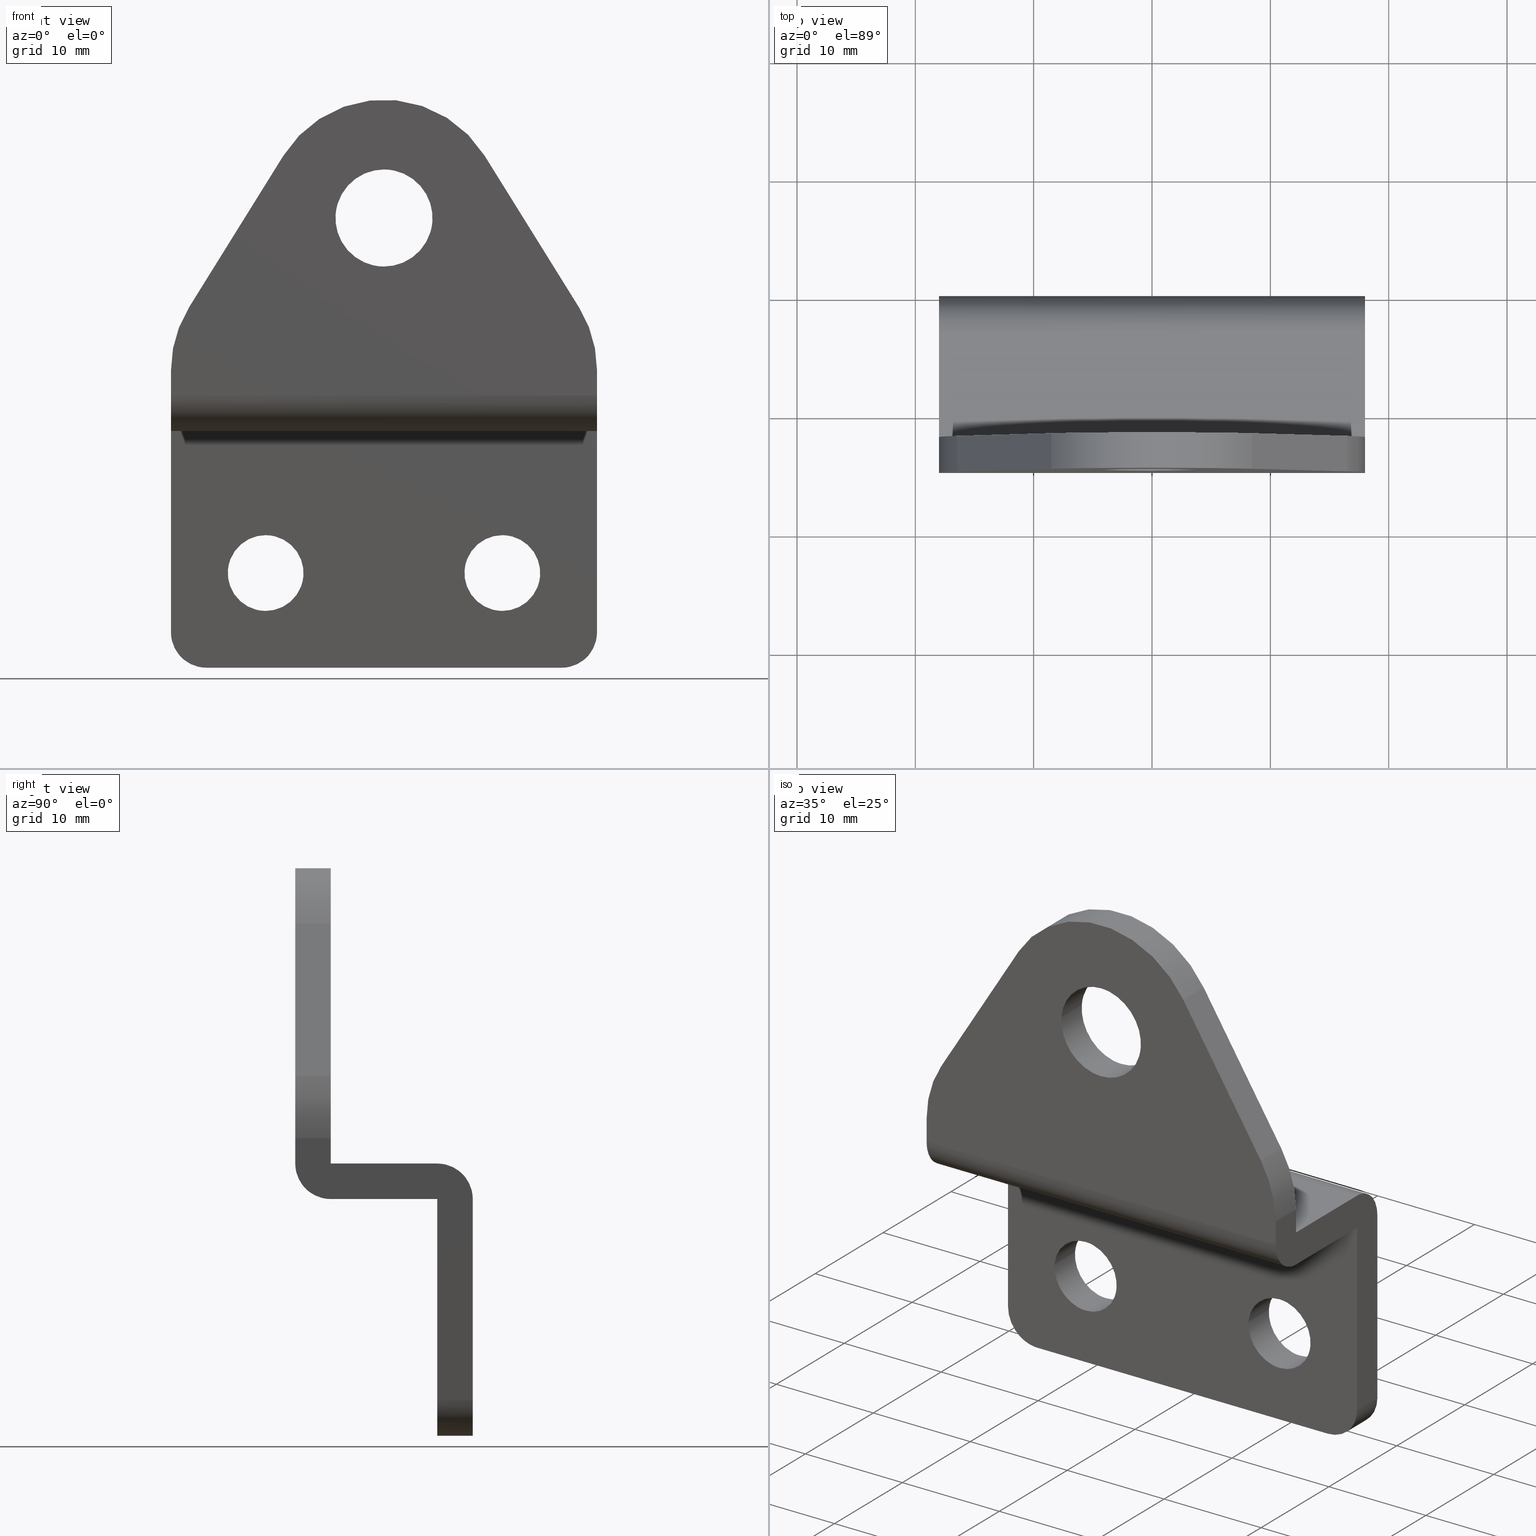
[diagram: canonical four-view strip — front | top / right | iso, engineering-drawing reading convention]
A machine part, canonical four-view strip (front | top / right | iso — engineering-drawing reading convention). The complete STEP part file that produces these views, byte-faithful:
ISO-10303-21;
HEADER;
/****************************************************************
 * Generated by software with PDE/Lib inside                    *
 * PDElib Version 4.4.1-0003, patched  Thursday August 19 11:58 *
 * International Technegroup Inc. (www.iti-oh.com)              *
 ****************************************************************/
FILE_DESCRIPTION((''),'2;1');
FILE_NAME('','2005-04-20T11:14:29',(''),(''),'','CADfix','');
FILE_SCHEMA(('AUTOMOTIVE_DESIGN'));
ENDSEC;
DATA;
#5=APPLICATION_CONTEXT('automotive design');
#6=APPLICATION_PROTOCOL_DEFINITION('Draft International Standard','automotive_design',1998,#5);
#7=PRODUCT_CONTEXT('None',#5,'mechanical');
#8=PRODUCT('bracket','','None',(#7));
#9=PRODUCT_RELATED_PRODUCT_CATEGORY('part','description',(#8));
#10=PRODUCT_DEFINITION_FORMATION('None','None',#8);
#11=PRODUCT_DEFINITION_CONTEXT('part definition',#5,'design');
#12=PRODUCT_DEFINITION('None','None',#10,#11);
#18=(NAMED_UNIT(*)PLANE_ANGLE_UNIT()SI_UNIT($,.RADIAN.));
#19=DIMENSIONAL_EXPONENTS(0.0,0.0,0.0,0.0,0.0,0.0,0.0);
#20=PLANE_ANGLE_MEASURE_WITH_UNIT(PLANE_ANGLE_MEASURE(0.017453292500000),#18);
#24=(CONVERSION_BASED_UNIT('DEGREE',#20)NAMED_UNIT(#19)PLANE_ANGLE_UNIT());
#28=(NAMED_UNIT(*)SI_UNIT($,.STERADIAN.)SOLID_ANGLE_UNIT());
#32=(LENGTH_UNIT()NAMED_UNIT(*)SI_UNIT(.MILLI.,.METRE.));
#34=UNCERTAINTY_MEASURE_WITH_UNIT(LENGTH_MEASURE(0.001000000000000),#32,'DISTANCE_ACCURACY_VALUE','');
#36=(GEOMETRIC_REPRESENTATION_CONTEXT(3)GLOBAL_UNCERTAINTY_ASSIGNED_CONTEXT((#34))GLOBAL_UNIT_ASSIGNED_CONTEXT((#24,#28,#32))REPRESENTATION_CONTEXT('None','None'));
#37=AXIS2_PLACEMENT_3D('',#38,#39,#40);
#38=CARTESIAN_POINT('',(0.0,0.0,0.0));
#39=DIRECTION('',(0.0,0.0,1.0));
#40=DIRECTION('',(1.0,0.0,0.0));
#41=ADVANCED_BREP_SHAPE_REPRESENTATION('',(#37,#1302),#36);
#42=PRODUCT_DEFINITION_SHAPE('','',#12);
#43=SHAPE_DEFINITION_REPRESENTATION(#42,#41);
#44=CARTESIAN_POINT('',(-13.190142467946011,-3.075000000000118,8.251069106329105));
#45=CARTESIAN_POINT('',(-12.939073361616902,-3.075000000000117,11.441204574275114));
#46=CARTESIAN_POINT('',(-9.748937893670895,-3.075000000000118,11.190135467946011));
#47=CARTESIAN_POINT('',(-6.558802425724885,-3.075000000000117,10.939066361616902));
#48=CARTESIAN_POINT('',(-6.809871532053991,-3.075000000000118,7.748930893670894));
#49=CARTESIAN_POINT('',(-13.190142467946011,0.076875000000003,8.251069106329105));
#50=CARTESIAN_POINT('',(-12.939073361616902,0.076875000000003,11.441204574275114));
#51=CARTESIAN_POINT('',(-9.748937893670895,0.076875000000003,11.190135467946011));
#52=CARTESIAN_POINT('',(-6.558802425724885,0.076875000000003,10.939066361616902));
#53=CARTESIAN_POINT('',(-6.809871532053991,0.076875000000003,7.748930893670894));
#61=(BOUNDED_SURFACE()B_SPLINE_SURFACE(2,1,((#44,#49),(#45,#50),(#46,#51),(#47,#52),(#48,#53)),.UNSPECIFIED.,.F.,.F.,.U.)B_SPLINE_SURFACE_WITH_KNOTS((3,2,3),(2,2),(0.0,5.301933598375618,10.603867196751240),(0.0,3.151875000000122),.UNSPECIFIED.)GEOMETRIC_REPRESENTATION_ITEM()RATIONAL_B_SPLINE_SURFACE(((1.0,1.0),(0.707106781186548,0.707106781186548),(1.0,1.0),(0.707106781186548,0.707106781186548),(1.0,1.0)))REPRESENTATION_ITEM('')SURFACE());
#62=CARTESIAN_POINT('',(-10.000007000000000,-3.000000000000115,11.199999999999999));
#63=VERTEX_POINT('',#62);
#64=CARTESIAN_POINT('',(-13.190142467944270,-3.000000000000115,8.251069106351242));
#65=VERTEX_POINT('',#64);
#66=CARTESIAN_POINT('',(-10.000007000000000,-3.000000000000115,11.199999999999999));
#67=CARTESIAN_POINT('',(-12.958056573265079,-3.000000000000115,11.200000000000001));
#68=CARTESIAN_POINT('',(-13.190142467944266,-3.000000000000115,8.251069106351242));
#76=(BOUNDED_CURVE()B_SPLINE_CURVE(2,(#66,#67,#68),.UNSPECIFIED.,.F.,.U.)B_SPLINE_CURVE_WITH_KNOTS((3,3),(0.0,0.236331300630387),.UNSPECIFIED.)CURVE()GEOMETRIC_REPRESENTATION_ITEM()RATIONAL_B_SPLINE_CURVE((1.0,0.723120658607984,0.969723356166850))REPRESENTATION_ITEM(''));
#77=EDGE_CURVE('',#63,#65,#76,.T.);
#78=ORIENTED_EDGE('',*,*,#77,.T.);
#79=CARTESIAN_POINT('',(-13.190142467944270,-5.551115E-017,8.251069106351242));
#80=VERTEX_POINT('',#79);
#81=CARTESIAN_POINT('',(-13.190142467944270,-3.000000000000115,8.251069106351242));
#82=CARTESIAN_POINT('',(-13.190142467944270,-5.551115E-017,8.251069106351242));
#83=QUASI_UNIFORM_CURVE('',1,(#81,#82),.UNSPECIFIED.,.F.,.U.);
#84=EDGE_CURVE('',#65,#80,#83,.T.);
#85=ORIENTED_EDGE('',*,*,#84,.T.);
#86=CARTESIAN_POINT('',(-10.000007000000000,0.0,11.199999999999999));
#87=VERTEX_POINT('',#86);
#88=CARTESIAN_POINT('',(-10.000007000000000,0.0,11.199999999999999));
#89=CARTESIAN_POINT('',(-12.958056573265079,0.0,11.200000000000001));
#90=CARTESIAN_POINT('',(-13.190142467944266,-5.551115E-017,8.251069106351242));
#98=(BOUNDED_CURVE()B_SPLINE_CURVE(2,(#88,#89,#90),.UNSPECIFIED.,.F.,.U.)B_SPLINE_CURVE_WITH_KNOTS((3,3),(0.0,0.236331300630387),.UNSPECIFIED.)CURVE()GEOMETRIC_REPRESENTATION_ITEM()RATIONAL_B_SPLINE_CURVE((1.0,0.723120658607984,0.969723356166850))REPRESENTATION_ITEM(''));
#99=EDGE_CURVE('',#87,#80,#98,.T.);
#100=ORIENTED_EDGE('',*,*,#99,.F.);
#101=CARTESIAN_POINT('',(-6.809871532055734,-5.551115E-017,7.748930893648756));
#102=VERTEX_POINT('',#101);
#103=CARTESIAN_POINT('',(-6.809871532055734,-5.551115E-017,7.748930893648756));
#104=CARTESIAN_POINT('',(-6.800007000000000,0.0,7.874271657553215));
#105=CARTESIAN_POINT('',(-6.800007000000000,0.0,8.0));
#106=CARTESIAN_POINT('',(-6.800007000000001,0.0,11.199999999999999));
#107=CARTESIAN_POINT('',(-10.000007000000000,0.0,11.199999999999999));
#115=(BOUNDED_CURVE()B_SPLINE_CURVE(2,(#103,#104,#105,#106,#107),.UNSPECIFIED.,.F.,.U.)B_SPLINE_CURVE_WITH_KNOTS((3,2,3),(0.736331300630388,0.750000000000000,1.0),.UNSPECIFIED.)CURVE()GEOMETRIC_REPRESENTATION_ITEM()RATIONAL_B_SPLINE_CURVE((0.969723356166850,0.983986122578563,1.0,0.707106781186548,1.0))REPRESENTATION_ITEM(''));
#116=EDGE_CURVE('',#102,#87,#115,.T.);
#117=ORIENTED_EDGE('',*,*,#116,.F.);
#118=CARTESIAN_POINT('',(-6.809871532055734,-3.000000000000116,7.748930893648756));
#119=VERTEX_POINT('',#118);
#120=CARTESIAN_POINT('',(-6.809871532055734,-3.000000000000116,7.748930893648756));
#121=CARTESIAN_POINT('',(-6.809871532055734,-5.551115E-017,7.748930893648756));
#122=QUASI_UNIFORM_CURVE('',1,(#120,#121),.UNSPECIFIED.,.F.,.U.);
#123=EDGE_CURVE('',#119,#102,#122,.T.);
#124=ORIENTED_EDGE('',*,*,#123,.F.);
#125=CARTESIAN_POINT('',(-6.809871532055734,-3.000000000000116,7.748930893648756));
#126=CARTESIAN_POINT('',(-6.800007000000000,-3.000000000000115,7.874271657553215));
#127=CARTESIAN_POINT('',(-6.800007000000000,-3.000000000000115,8.0));
#128=CARTESIAN_POINT('',(-6.800007000000001,-3.000000000000115,11.199999999999999));
#129=CARTESIAN_POINT('',(-10.000007000000000,-3.000000000000115,11.199999999999999));
#137=(BOUNDED_CURVE()B_SPLINE_CURVE(2,(#125,#126,#127,#128,#129),.UNSPECIFIED.,.F.,.U.)B_SPLINE_CURVE_WITH_KNOTS((3,2,3),(0.736331300630388,0.750000000000000,1.0),.UNSPECIFIED.)CURVE()GEOMETRIC_REPRESENTATION_ITEM()RATIONAL_B_SPLINE_CURVE((0.969723356166850,0.983986122578563,1.0,0.707106781186548,1.0))REPRESENTATION_ITEM(''));
#138=EDGE_CURVE('',#119,#63,#137,.T.);
#139=ORIENTED_EDGE('',*,*,#138,.T.);
#140=EDGE_LOOP('',(#78,#85,#100,#117,#124,#139));
#141=FACE_OUTER_BOUND('',#140,.T.);
#142=ADVANCED_FACE('',(#141),#61,.F.);
#143=CARTESIAN_POINT('',(-6.809871532053991,-3.075000000000118,7.748930893670894));
#144=CARTESIAN_POINT('',(-7.060940638383097,-3.075000000000117,4.558795425724886));
#145=CARTESIAN_POINT('',(-10.251076106329110,-3.075000000000118,4.809864532053991));
#146=CARTESIAN_POINT('',(-13.441211574275114,-3.075000000000117,5.060933638383096));
#147=CARTESIAN_POINT('',(-13.190142467946011,-3.075000000000118,8.251069106329105));
#148=CARTESIAN_POINT('',(-6.809871532053991,0.076875000000003,7.748930893670894));
#149=CARTESIAN_POINT('',(-7.060940638383097,0.076875000000003,4.558795425724886));
#150=CARTESIAN_POINT('',(-10.251076106329110,0.076875000000003,4.809864532053991));
#151=CARTESIAN_POINT('',(-13.441211574275114,0.076875000000003,5.060933638383096));
#152=CARTESIAN_POINT('',(-13.190142467946011,0.076875000000003,8.251069106329105));
#160=(BOUNDED_SURFACE()B_SPLINE_SURFACE(2,1,((#143,#148),(#144,#149),(#145,#150),(#146,#151),(#147,#152)),.UNSPECIFIED.,.F.,.F.,.U.)B_SPLINE_SURFACE_WITH_KNOTS((3,2,3),(2,2),(0.0,5.301933598375618,10.603867196751240),(0.0,3.151875000000122),.UNSPECIFIED.)GEOMETRIC_REPRESENTATION_ITEM()RATIONAL_B_SPLINE_SURFACE(((1.0,1.0),(0.707106781186548,0.707106781186548),(1.0,1.0),(0.707106781186548,0.707106781186548),(1.0,1.0)))REPRESENTATION_ITEM('')SURFACE());
#161=CARTESIAN_POINT('',(-10.000007000000000,-3.000000000000115,4.800000000000001));
#162=VERTEX_POINT('',#161);
#163=CARTESIAN_POINT('',(-13.190142467944264,-3.000000000000115,8.251069106351242));
#164=CARTESIAN_POINT('',(-13.200006999999998,-3.000000000000115,8.125728342446784));
#165=CARTESIAN_POINT('',(-13.200006999999999,-3.000000000000115,8.0));
#166=CARTESIAN_POINT('',(-13.200006999999999,-3.000000000000115,4.800000000000001));
#167=CARTESIAN_POINT('',(-10.000007000000000,-3.000000000000115,4.800000000000001));
#175=(BOUNDED_CURVE()B_SPLINE_CURVE(2,(#163,#164,#165,#166,#167),.UNSPECIFIED.,.F.,.U.)B_SPLINE_CURVE_WITH_KNOTS((3,2,3),(0.236331300630388,0.250000000000000,0.500000000000000),.UNSPECIFIED.)CURVE()GEOMETRIC_REPRESENTATION_ITEM()RATIONAL_B_SPLINE_CURVE((0.969723356166850,0.983986122578563,1.0,0.707106781186548,1.0))REPRESENTATION_ITEM(''));
#176=EDGE_CURVE('',#65,#162,#175,.T.);
#177=ORIENTED_EDGE('',*,*,#176,.T.);
#178=CARTESIAN_POINT('',(-10.000007000000000,-3.000000000000115,4.800000000000001));
#179=CARTESIAN_POINT('',(-7.041957426734915,-3.000000000000116,4.800000000000001));
#180=CARTESIAN_POINT('',(-6.809871532055734,-3.000000000000116,7.748930893648756));
#188=(BOUNDED_CURVE()B_SPLINE_CURVE(2,(#178,#179,#180),.UNSPECIFIED.,.F.,.U.)B_SPLINE_CURVE_WITH_KNOTS((3,3),(0.500000000000000,0.736331300630388),.UNSPECIFIED.)CURVE()GEOMETRIC_REPRESENTATION_ITEM()RATIONAL_B_SPLINE_CURVE((1.0,0.723120658607984,0.969723356166851))REPRESENTATION_ITEM(''));
#189=EDGE_CURVE('',#162,#119,#188,.T.);
#190=ORIENTED_EDGE('',*,*,#189,.T.);
#191=ORIENTED_EDGE('',*,*,#123,.T.);
#192=CARTESIAN_POINT('',(-10.000007000000000,0.0,4.800000000000001));
#193=VERTEX_POINT('',#192);
#194=CARTESIAN_POINT('',(-10.000007000000000,0.0,4.800000000000001));
#195=CARTESIAN_POINT('',(-7.041957426734915,0.0,4.800000000000001));
#196=CARTESIAN_POINT('',(-6.809871532055734,-5.551115E-017,7.748930893648756));
#204=(BOUNDED_CURVE()B_SPLINE_CURVE(2,(#194,#195,#196),.UNSPECIFIED.,.F.,.U.)B_SPLINE_CURVE_WITH_KNOTS((3,3),(0.500000000000000,0.736331300630388),.UNSPECIFIED.)CURVE()GEOMETRIC_REPRESENTATION_ITEM()RATIONAL_B_SPLINE_CURVE((1.0,0.723120658607984,0.969723356166851))REPRESENTATION_ITEM(''));
#205=EDGE_CURVE('',#193,#102,#204,.T.);
#206=ORIENTED_EDGE('',*,*,#205,.F.);
#207=CARTESIAN_POINT('',(-13.190142467944264,-5.551115E-017,8.251069106351242));
#208=CARTESIAN_POINT('',(-13.200006999999998,0.0,8.125728342446784));
#209=CARTESIAN_POINT('',(-13.200006999999999,0.0,8.0));
#210=CARTESIAN_POINT('',(-13.200006999999999,0.0,4.800000000000001));
#211=CARTESIAN_POINT('',(-10.000007000000000,0.0,4.800000000000001));
#219=(BOUNDED_CURVE()B_SPLINE_CURVE(2,(#207,#208,#209,#210,#211),.UNSPECIFIED.,.F.,.U.)B_SPLINE_CURVE_WITH_KNOTS((3,2,3),(0.236331300630388,0.250000000000000,0.500000000000000),.UNSPECIFIED.)CURVE()GEOMETRIC_REPRESENTATION_ITEM()RATIONAL_B_SPLINE_CURVE((0.969723356166850,0.983986122578563,1.0,0.707106781186548,1.0))REPRESENTATION_ITEM(''));
#220=EDGE_CURVE('',#80,#193,#219,.T.);
#221=ORIENTED_EDGE('',*,*,#220,.F.);
#222=ORIENTED_EDGE('',*,*,#84,.F.);
#223=EDGE_LOOP('',(#177,#190,#191,#206,#221,#222));
#224=FACE_OUTER_BOUND('',#223,.T.);
#225=ADVANCED_FACE('',(#224),#160,.F.);
#226=CARTESIAN_POINT('',(6.809864532053991,-3.075000000000118,8.251069106329105));
#227=CARTESIAN_POINT('',(7.060933638383096,-3.075000000000117,11.441204574275114));
#228=CARTESIAN_POINT('',(10.251069106329110,-3.075000000000118,11.190135467946011));
#229=CARTESIAN_POINT('',(13.441204574275117,-3.075000000000117,10.939066361616902));
#230=CARTESIAN_POINT('',(13.190135467946011,-3.075000000000118,7.748930893670894));
#231=CARTESIAN_POINT('',(6.809864532053991,0.076875000000003,8.251069106329105));
#232=CARTESIAN_POINT('',(7.060933638383096,0.076875000000003,11.441204574275114));
#233=CARTESIAN_POINT('',(10.251069106329110,0.076875000000003,11.190135467946011));
#234=CARTESIAN_POINT('',(13.441204574275117,0.076875000000003,10.939066361616902));
#235=CARTESIAN_POINT('',(13.190135467946011,0.076875000000003,7.748930893670894));
#243=(BOUNDED_SURFACE()B_SPLINE_SURFACE(2,1,((#226,#231),(#227,#232),(#228,#233),(#229,#234),(#230,#235)),.UNSPECIFIED.,.F.,.F.,.U.)B_SPLINE_SURFACE_WITH_KNOTS((3,2,3),(2,2),(0.0,5.301933598375618,10.603867196751240),(0.0,3.151875000000122),.UNSPECIFIED.)GEOMETRIC_REPRESENTATION_ITEM()RATIONAL_B_SPLINE_SURFACE(((1.0,1.0),(0.707106781186548,0.707106781186548),(1.0,1.0),(0.707106781186548,0.707106781186548),(1.0,1.0)))REPRESENTATION_ITEM('')SURFACE());
#244=CARTESIAN_POINT('',(10.0,-3.000000000000115,11.199999999999999));
#245=VERTEX_POINT('',#244);
#246=CARTESIAN_POINT('',(6.809864532055734,-3.000000000000116,8.251069106351244));
#247=VERTEX_POINT('',#246);
#248=CARTESIAN_POINT('',(10.0,-3.000000000000115,11.199999999999999));
#249=CARTESIAN_POINT('',(7.041950426734925,-3.000000000000116,11.199999999999999));
#250=CARTESIAN_POINT('',(6.809864532055734,-3.000000000000116,8.251069106351244));
#258=(BOUNDED_CURVE()B_SPLINE_CURVE(2,(#248,#249,#250),.UNSPECIFIED.,.F.,.U.)B_SPLINE_CURVE_WITH_KNOTS((3,3),(0.0,0.236331300630387),.UNSPECIFIED.)CURVE()GEOMETRIC_REPRESENTATION_ITEM()RATIONAL_B_SPLINE_CURVE((1.0,0.723120658607984,0.969723356166850))REPRESENTATION_ITEM(''));
#259=EDGE_CURVE('',#245,#247,#258,.T.);
#260=ORIENTED_EDGE('',*,*,#259,.T.);
#261=CARTESIAN_POINT('',(6.809864532055734,-5.551115E-017,8.251069106351244));
#262=VERTEX_POINT('',#261);
#263=CARTESIAN_POINT('',(6.809864532055734,-3.000000000000116,8.251069106351244));
#264=CARTESIAN_POINT('',(6.809864532055734,-5.551115E-017,8.251069106351244));
#265=QUASI_UNIFORM_CURVE('',1,(#263,#264),.UNSPECIFIED.,.F.,.U.);
#266=EDGE_CURVE('',#247,#262,#265,.T.);
#267=ORIENTED_EDGE('',*,*,#266,.T.);
#268=CARTESIAN_POINT('',(10.0,0.0,11.199999999999999));
#269=VERTEX_POINT('',#268);
#270=CARTESIAN_POINT('',(10.0,0.0,11.199999999999999));
#271=CARTESIAN_POINT('',(7.041950426734925,0.0,11.199999999999999));
#272=CARTESIAN_POINT('',(6.809864532055734,-5.551115E-017,8.251069106351244));
#280=(BOUNDED_CURVE()B_SPLINE_CURVE(2,(#270,#271,#272),.UNSPECIFIED.,.F.,.U.)B_SPLINE_CURVE_WITH_KNOTS((3,3),(0.0,0.236331300630387),.UNSPECIFIED.)CURVE()GEOMETRIC_REPRESENTATION_ITEM()RATIONAL_B_SPLINE_CURVE((1.0,0.723120658607984,0.969723356166850))REPRESENTATION_ITEM(''));
#281=EDGE_CURVE('',#269,#262,#280,.T.);
#282=ORIENTED_EDGE('',*,*,#281,.F.);
#283=CARTESIAN_POINT('',(13.190135467944270,-5.551115E-017,7.748930893648756));
#284=VERTEX_POINT('',#283);
#285=CARTESIAN_POINT('',(13.190135467944268,-5.551115E-017,7.748930893648756));
#286=CARTESIAN_POINT('',(13.199999999999996,0.0,7.874271657553215));
#287=CARTESIAN_POINT('',(13.199999999999999,0.0,8.0));
#288=CARTESIAN_POINT('',(13.199999999999998,0.0,11.199999999999999));
#289=CARTESIAN_POINT('',(10.0,0.0,11.199999999999999));
#297=(BOUNDED_CURVE()B_SPLINE_CURVE(2,(#285,#286,#287,#288,#289),.UNSPECIFIED.,.F.,.U.)B_SPLINE_CURVE_WITH_KNOTS((3,2,3),(0.736331300630388,0.750000000000000,1.0),.UNSPECIFIED.)CURVE()GEOMETRIC_REPRESENTATION_ITEM()RATIONAL_B_SPLINE_CURVE((0.969723356166850,0.983986122578563,1.0,0.707106781186548,1.0))REPRESENTATION_ITEM(''));
#298=EDGE_CURVE('',#284,#269,#297,.T.);
#299=ORIENTED_EDGE('',*,*,#298,.F.);
#300=CARTESIAN_POINT('',(13.190135467944270,-3.000000000000116,7.748930893648756));
#301=VERTEX_POINT('',#300);
#302=CARTESIAN_POINT('',(13.190135467944270,-3.000000000000116,7.748930893648756));
#303=CARTESIAN_POINT('',(13.190135467944270,-5.551115E-017,7.748930893648756));
#304=QUASI_UNIFORM_CURVE('',1,(#302,#303),.UNSPECIFIED.,.F.,.U.);
#305=EDGE_CURVE('',#301,#284,#304,.T.);
#306=ORIENTED_EDGE('',*,*,#305,.F.);
#307=CARTESIAN_POINT('',(13.190135467944268,-3.000000000000116,7.748930893648756));
#308=CARTESIAN_POINT('',(13.199999999999996,-3.000000000000115,7.874271657553215));
#309=CARTESIAN_POINT('',(13.199999999999999,-3.000000000000115,8.0));
#310=CARTESIAN_POINT('',(13.199999999999998,-3.000000000000115,11.199999999999999));
#311=CARTESIAN_POINT('',(10.0,-3.000000000000115,11.199999999999999));
#319=(BOUNDED_CURVE()B_SPLINE_CURVE(2,(#307,#308,#309,#310,#311),.UNSPECIFIED.,.F.,.U.)B_SPLINE_CURVE_WITH_KNOTS((3,2,3),(0.736331300630388,0.750000000000000,1.0),.UNSPECIFIED.)CURVE()GEOMETRIC_REPRESENTATION_ITEM()RATIONAL_B_SPLINE_CURVE((0.969723356166850,0.983986122578563,1.0,0.707106781186548,1.0))REPRESENTATION_ITEM(''));
#320=EDGE_CURVE('',#301,#245,#319,.T.);
#321=ORIENTED_EDGE('',*,*,#320,.T.);
#322=EDGE_LOOP('',(#260,#267,#282,#299,#306,#321));
#323=FACE_OUTER_BOUND('',#322,.T.);
#324=ADVANCED_FACE('',(#323),#243,.F.);
#325=CARTESIAN_POINT('',(13.190135467946011,-3.075000000000118,7.748930893670894));
#326=CARTESIAN_POINT('',(12.939066361616902,-3.075000000000117,4.558795425724886));
#327=CARTESIAN_POINT('',(9.748930893670895,-3.075000000000118,4.809864532053991));
#328=CARTESIAN_POINT('',(6.558795425724886,-3.075000000000117,5.060933638383096));
#329=CARTESIAN_POINT('',(6.809864532053991,-3.075000000000118,8.251069106329105));
#330=CARTESIAN_POINT('',(13.190135467946011,0.076875000000003,7.748930893670894));
#331=CARTESIAN_POINT('',(12.939066361616902,0.076875000000003,4.558795425724886));
#332=CARTESIAN_POINT('',(9.748930893670895,0.076875000000003,4.809864532053991));
#333=CARTESIAN_POINT('',(6.558795425724886,0.076875000000003,5.060933638383096));
#334=CARTESIAN_POINT('',(6.809864532053991,0.076875000000003,8.251069106329105));
#342=(BOUNDED_SURFACE()B_SPLINE_SURFACE(2,1,((#325,#330),(#326,#331),(#327,#332),(#328,#333),(#329,#334)),.UNSPECIFIED.,.F.,.F.,.U.)B_SPLINE_SURFACE_WITH_KNOTS((3,2,3),(2,2),(0.0,5.301933598375616,10.603867196751230),(0.0,3.151875000000122),.UNSPECIFIED.)GEOMETRIC_REPRESENTATION_ITEM()RATIONAL_B_SPLINE_SURFACE(((1.0,1.0),(0.707106781186548,0.707106781186548),(1.0,1.0),(0.707106781186548,0.707106781186548),(1.0,1.0)))REPRESENTATION_ITEM('')SURFACE());
#343=CARTESIAN_POINT('',(10.0,-3.000000000000115,4.800000000000001));
#344=VERTEX_POINT('',#343);
#345=CARTESIAN_POINT('',(6.809864532055734,-3.000000000000116,8.251069106351244));
#346=CARTESIAN_POINT('',(6.800000000000001,-3.000000000000115,8.125728342446784));
#347=CARTESIAN_POINT('',(6.800000000000001,-3.000000000000115,8.0));
#348=CARTESIAN_POINT('',(6.800000000000002,-3.000000000000115,4.800000000000001));
#349=CARTESIAN_POINT('',(10.0,-3.000000000000115,4.800000000000001));
#357=(BOUNDED_CURVE()B_SPLINE_CURVE(2,(#345,#346,#347,#348,#349),.UNSPECIFIED.,.F.,.U.)B_SPLINE_CURVE_WITH_KNOTS((3,2,3),(0.236331300630387,0.250000000000000,0.500000000000000),.UNSPECIFIED.)CURVE()GEOMETRIC_REPRESENTATION_ITEM()RATIONAL_B_SPLINE_CURVE((0.969723356166850,0.983986122578563,1.0,0.707106781186548,1.0))REPRESENTATION_ITEM(''));
#358=EDGE_CURVE('',#247,#344,#357,.T.);
#359=ORIENTED_EDGE('',*,*,#358,.T.);
#360=CARTESIAN_POINT('',(10.0,-3.000000000000115,4.800000000000001));
#361=CARTESIAN_POINT('',(12.958049573265084,-3.000000000000116,4.800000000000001));
#362=CARTESIAN_POINT('',(13.190135467944266,-3.000000000000116,7.748930893648756));
#370=(BOUNDED_CURVE()B_SPLINE_CURVE(2,(#360,#361,#362),.UNSPECIFIED.,.F.,.U.)B_SPLINE_CURVE_WITH_KNOTS((3,3),(0.500000000000000,0.736331300630388),.UNSPECIFIED.)CURVE()GEOMETRIC_REPRESENTATION_ITEM()RATIONAL_B_SPLINE_CURVE((1.0,0.723120658607984,0.969723356166851))REPRESENTATION_ITEM(''));
#371=EDGE_CURVE('',#344,#301,#370,.T.);
#372=ORIENTED_EDGE('',*,*,#371,.T.);
#373=ORIENTED_EDGE('',*,*,#305,.T.);
#374=CARTESIAN_POINT('',(10.0,0.0,4.800000000000001));
#375=VERTEX_POINT('',#374);
#376=CARTESIAN_POINT('',(10.0,0.0,4.800000000000001));
#377=CARTESIAN_POINT('',(12.958049573265084,0.0,4.800000000000001));
#378=CARTESIAN_POINT('',(13.190135467944266,-5.551115E-017,7.748930893648756));
#386=(BOUNDED_CURVE()B_SPLINE_CURVE(2,(#376,#377,#378),.UNSPECIFIED.,.F.,.U.)B_SPLINE_CURVE_WITH_KNOTS((3,3),(0.500000000000000,0.736331300630388),.UNSPECIFIED.)CURVE()GEOMETRIC_REPRESENTATION_ITEM()RATIONAL_B_SPLINE_CURVE((1.0,0.723120658607984,0.969723356166851))REPRESENTATION_ITEM(''));
#387=EDGE_CURVE('',#375,#284,#386,.T.);
#388=ORIENTED_EDGE('',*,*,#387,.F.);
#389=CARTESIAN_POINT('',(6.809864532055734,-5.551115E-017,8.251069106351244));
#390=CARTESIAN_POINT('',(6.800000000000001,0.0,8.125728342446784));
#391=CARTESIAN_POINT('',(6.800000000000001,0.0,8.0));
#392=CARTESIAN_POINT('',(6.800000000000002,0.0,4.800000000000001));
#393=CARTESIAN_POINT('',(10.0,0.0,4.800000000000001));
#401=(BOUNDED_CURVE()B_SPLINE_CURVE(2,(#389,#390,#391,#392,#393),.UNSPECIFIED.,.F.,.U.)B_SPLINE_CURVE_WITH_KNOTS((3,2,3),(0.236331300630387,0.250000000000000,0.500000000000000),.UNSPECIFIED.)CURVE()GEOMETRIC_REPRESENTATION_ITEM()RATIONAL_B_SPLINE_CURVE((0.969723356166850,0.983986122578563,1.0,0.707106781186548,1.0))REPRESENTATION_ITEM(''));
#402=EDGE_CURVE('',#262,#375,#401,.T.);
#403=ORIENTED_EDGE('',*,*,#402,.F.);
#404=ORIENTED_EDGE('',*,*,#266,.F.);
#405=EDGE_LOOP('',(#359,#372,#373,#388,#403,#404));
#406=FACE_OUTER_BOUND('',#405,.T.);
#407=ADVANCED_FACE('',(#406),#342,.F.);
#408=CARTESIAN_POINT('',(-4.087361068305824,-15.074999999999999,38.321682292484169));
#409=CARTESIAN_POINT('',(-3.765678775821657,-15.074999999999994,42.409043360790001));
#410=CARTESIAN_POINT('',(0.321682292484167,-15.074999999999999,42.087361068305832));
#411=CARTESIAN_POINT('',(4.409043360789990,-15.074999999999994,41.765678775821662));
#412=CARTESIAN_POINT('',(4.087361068305824,-15.074999999999999,37.678317707515831));
#413=CARTESIAN_POINT('',(-4.087361068305824,-11.923125000000120,38.321682292484169));
#414=CARTESIAN_POINT('',(-3.765678775821657,-11.923125000000120,42.409043360790001));
#415=CARTESIAN_POINT('',(0.321682292484167,-11.923125000000120,42.087361068305832));
#416=CARTESIAN_POINT('',(4.409043360789990,-11.923125000000120,41.765678775821662));
#417=CARTESIAN_POINT('',(4.087361068305824,-11.923125000000120,37.678317707515831));
#425=(BOUNDED_SURFACE()B_SPLINE_SURFACE(2,1,((#408,#413),(#409,#414),(#410,#415),(#411,#416),(#412,#417)),.UNSPECIFIED.,.F.,.F.,.U.)B_SPLINE_SURFACE_WITH_KNOTS((3,2,3),(2,2),(0.0,6.793102422918767,13.586204845837530),(0.0,3.151874999999878),.UNSPECIFIED.)GEOMETRIC_REPRESENTATION_ITEM()RATIONAL_B_SPLINE_SURFACE(((1.0,1.0),(0.707106781186548,0.707106781186548),(1.0,1.0),(0.707106781186548,0.707106781186548),(1.0,1.0)))REPRESENTATION_ITEM('')SURFACE());
#426=CARTESIAN_POINT('',(0.0,-15.0,42.100000000000001));
#427=VERTEX_POINT('',#426);
#428=CARTESIAN_POINT('',(-4.087361068302946,-15.0,38.321682292520741));
#429=VERTEX_POINT('',#428);
#430=CARTESIAN_POINT('',(0.0,-15.0,42.100000000000001));
#431=CARTESIAN_POINT('',(-3.790001015730614,-14.999999999999996,42.100000000000009));
#432=CARTESIAN_POINT('',(-4.087361068302946,-15.000000000000002,38.321682292520741));
#440=(BOUNDED_CURVE()B_SPLINE_CURVE(2,(#430,#431,#432),.UNSPECIFIED.,.F.,.U.)B_SPLINE_CURVE_WITH_KNOTS((3,3),(0.0,0.236331300629699),.UNSPECIFIED.)CURVE()GEOMETRIC_REPRESENTATION_ITEM()RATIONAL_B_SPLINE_CURVE((1.0,0.723120658608791,0.969723356165413))REPRESENTATION_ITEM(''));
#441=EDGE_CURVE('',#427,#429,#440,.T.);
#442=ORIENTED_EDGE('',*,*,#441,.T.);
#443=CARTESIAN_POINT('',(-4.087361068302947,-12.000000000000121,38.321682292520741));
#444=VERTEX_POINT('',#443);
#445=CARTESIAN_POINT('',(-4.087361068302946,-15.0,38.321682292520741));
#446=CARTESIAN_POINT('',(-4.087361068302947,-12.000000000000121,38.321682292520741));
#447=QUASI_UNIFORM_CURVE('',1,(#445,#446),.UNSPECIFIED.,.F.,.U.);
#448=EDGE_CURVE('',#429,#444,#447,.T.);
#449=ORIENTED_EDGE('',*,*,#448,.T.);
#450=CARTESIAN_POINT('',(0.0,-12.000000000000121,42.100000000000001));
#451=VERTEX_POINT('',#450);
#452=CARTESIAN_POINT('',(0.0,-12.000000000000121,42.100000000000001));
#453=CARTESIAN_POINT('',(-3.790001015730614,-12.000000000000121,42.100000000000009));
#454=CARTESIAN_POINT('',(-4.087361068302946,-12.000000000000124,38.321682292520741));
#462=(BOUNDED_CURVE()B_SPLINE_CURVE(2,(#452,#453,#454),.UNSPECIFIED.,.F.,.U.)B_SPLINE_CURVE_WITH_KNOTS((3,3),(0.0,0.236331300629699),.UNSPECIFIED.)CURVE()GEOMETRIC_REPRESENTATION_ITEM()RATIONAL_B_SPLINE_CURVE((1.0,0.723120658608791,0.969723356165413))REPRESENTATION_ITEM(''));
#463=EDGE_CURVE('',#451,#444,#462,.T.);
#464=ORIENTED_EDGE('',*,*,#463,.F.);
#465=CARTESIAN_POINT('',(4.087361068302946,-12.000000000000121,37.678317707479259));
#466=VERTEX_POINT('',#465);
#467=CARTESIAN_POINT('',(4.087361068302946,-12.000000000000115,37.678317707479259));
#468=CARTESIAN_POINT('',(4.100000000000001,-12.000000000000124,37.838910561231806));
#469=CARTESIAN_POINT('',(4.100000000000001,-12.000000000000121,38.0));
#470=CARTESIAN_POINT('',(4.100000000000001,-12.000000000000121,42.100000000000001));
#471=CARTESIAN_POINT('',(0.0,-12.000000000000121,42.100000000000001));
#479=(BOUNDED_CURVE()B_SPLINE_CURVE(2,(#467,#468,#469,#470,#471),.UNSPECIFIED.,.F.,.U.)B_SPLINE_CURVE_WITH_KNOTS((3,2,3),(0.736331300629699,0.750000000000000,1.0),.UNSPECIFIED.)CURVE()GEOMETRIC_REPRESENTATION_ITEM()RATIONAL_B_SPLINE_CURVE((0.969723356165413,0.983986122577757,1.0,0.707106781186547,1.0))REPRESENTATION_ITEM(''));
#480=EDGE_CURVE('',#466,#451,#479,.T.);
#481=ORIENTED_EDGE('',*,*,#480,.F.);
#482=CARTESIAN_POINT('',(4.087361068302946,-15.0,37.678317707479259));
#483=VERTEX_POINT('',#482);
#484=CARTESIAN_POINT('',(4.087361068302946,-15.0,37.678317707479259));
#485=CARTESIAN_POINT('',(4.087361068302946,-12.000000000000121,37.678317707479259));
#486=QUASI_UNIFORM_CURVE('',1,(#484,#485),.UNSPECIFIED.,.F.,.U.);
#487=EDGE_CURVE('',#483,#466,#486,.T.);
#488=ORIENTED_EDGE('',*,*,#487,.F.);
#489=CARTESIAN_POINT('',(4.087361068302946,-15.000000000000005,37.678317707479259));
#490=CARTESIAN_POINT('',(4.100000000000001,-15.000000000000002,37.838910561231806));
#491=CARTESIAN_POINT('',(4.100000000000001,-15.0,38.0));
#492=CARTESIAN_POINT('',(4.100000000000001,-14.999999999999996,42.100000000000001));
#493=CARTESIAN_POINT('',(0.0,-15.0,42.100000000000001));
#501=(BOUNDED_CURVE()B_SPLINE_CURVE(2,(#489,#490,#491,#492,#493),.UNSPECIFIED.,.F.,.U.)B_SPLINE_CURVE_WITH_KNOTS((3,2,3),(0.736331300629699,0.750000000000000,1.0),.UNSPECIFIED.)CURVE()GEOMETRIC_REPRESENTATION_ITEM()RATIONAL_B_SPLINE_CURVE((0.969723356165413,0.983986122577757,1.0,0.707106781186547,1.0))REPRESENTATION_ITEM(''));
#502=EDGE_CURVE('',#483,#427,#501,.T.);
#503=ORIENTED_EDGE('',*,*,#502,.T.);
#504=EDGE_LOOP('',(#442,#449,#464,#481,#488,#503));
#505=FACE_OUTER_BOUND('',#504,.T.);
#506=ADVANCED_FACE('',(#505),#425,.F.);
#507=CARTESIAN_POINT('',(4.087361068305824,-15.074999999999999,37.678317707515831));
#508=CARTESIAN_POINT('',(3.765678775821657,-15.074999999999994,33.590956639210013));
#509=CARTESIAN_POINT('',(-0.321682292484167,-15.074999999999999,33.912638931694183));
#510=CARTESIAN_POINT('',(-4.409043360789990,-15.074999999999994,34.234321224178345));
#511=CARTESIAN_POINT('',(-4.087361068305824,-15.074999999999999,38.321682292484169));
#512=CARTESIAN_POINT('',(4.087361068305824,-11.923125000000120,37.678317707515831));
#513=CARTESIAN_POINT('',(3.765678775821657,-11.923125000000120,33.590956639210013));
#514=CARTESIAN_POINT('',(-0.321682292484167,-11.923125000000120,33.912638931694183));
#515=CARTESIAN_POINT('',(-4.409043360789990,-11.923125000000120,34.234321224178345));
#516=CARTESIAN_POINT('',(-4.087361068305824,-11.923125000000120,38.321682292484169));
#524=(BOUNDED_SURFACE()B_SPLINE_SURFACE(2,1,((#507,#512),(#508,#513),(#509,#514),(#510,#515),(#511,#516)),.UNSPECIFIED.,.F.,.F.,.U.)B_SPLINE_SURFACE_WITH_KNOTS((3,2,3),(2,2),(0.0,6.793102422918762,13.586204845837520),(0.0,3.151874999999878),.UNSPECIFIED.)GEOMETRIC_REPRESENTATION_ITEM()RATIONAL_B_SPLINE_SURFACE(((1.0,1.0),(0.707106781186548,0.707106781186548),(1.0,1.0),(0.707106781186548,0.707106781186548),(1.0,1.0)))REPRESENTATION_ITEM('')SURFACE());
#525=CARTESIAN_POINT('',(0.0,-15.0,33.899999999999999));
#526=VERTEX_POINT('',#525);
#527=CARTESIAN_POINT('',(-4.087361068302946,-15.000000000000002,38.321682292520741));
#528=CARTESIAN_POINT('',(-4.100000000000001,-15.000000000000002,38.161089438768194));
#529=CARTESIAN_POINT('',(-4.100000000000001,-15.0,38.0));
#530=CARTESIAN_POINT('',(-4.100000000000001,-14.999999999999996,33.899999999999999));
#531=CARTESIAN_POINT('',(0.0,-15.0,33.899999999999999));
#539=(BOUNDED_CURVE()B_SPLINE_CURVE(2,(#527,#528,#529,#530,#531),.UNSPECIFIED.,.F.,.U.)B_SPLINE_CURVE_WITH_KNOTS((3,2,3),(0.236331300629699,0.250000000000000,0.500000000000000),.UNSPECIFIED.)CURVE()GEOMETRIC_REPRESENTATION_ITEM()RATIONAL_B_SPLINE_CURVE((0.969723356165413,0.983986122577757,1.0,0.707106781186547,1.0))REPRESENTATION_ITEM(''));
#540=EDGE_CURVE('',#429,#526,#539,.T.);
#541=ORIENTED_EDGE('',*,*,#540,.T.);
#542=CARTESIAN_POINT('',(0.0,-15.0,33.899999999999999));
#543=CARTESIAN_POINT('',(3.790001015730626,-14.999999999999996,33.899999999999991));
#544=CARTESIAN_POINT('',(4.087361068302946,-15.000000000000004,37.678317707479259));
#552=(BOUNDED_CURVE()B_SPLINE_CURVE(2,(#542,#543,#544),.UNSPECIFIED.,.F.,.U.)B_SPLINE_CURVE_WITH_KNOTS((3,3),(0.500000000000000,0.736331300629700),.UNSPECIFIED.)CURVE()GEOMETRIC_REPRESENTATION_ITEM()RATIONAL_B_SPLINE_CURVE((1.0,0.723120658608790,0.969723356165414))REPRESENTATION_ITEM(''));
#553=EDGE_CURVE('',#526,#483,#552,.T.);
#554=ORIENTED_EDGE('',*,*,#553,.T.);
#555=ORIENTED_EDGE('',*,*,#487,.T.);
#556=CARTESIAN_POINT('',(0.0,-12.000000000000121,33.899999999999999));
#557=VERTEX_POINT('',#556);
#558=CARTESIAN_POINT('',(0.0,-12.000000000000121,33.899999999999999));
#559=CARTESIAN_POINT('',(3.790001015730626,-12.000000000000121,33.899999999999991));
#560=CARTESIAN_POINT('',(4.087361068302946,-12.000000000000123,37.678317707479259));
#568=(BOUNDED_CURVE()B_SPLINE_CURVE(2,(#558,#559,#560),.UNSPECIFIED.,.F.,.U.)B_SPLINE_CURVE_WITH_KNOTS((3,3),(0.500000000000000,0.736331300629700),.UNSPECIFIED.)CURVE()GEOMETRIC_REPRESENTATION_ITEM()RATIONAL_B_SPLINE_CURVE((1.0,0.723120658608790,0.969723356165414))REPRESENTATION_ITEM(''));
#569=EDGE_CURVE('',#557,#466,#568,.T.);
#570=ORIENTED_EDGE('',*,*,#569,.F.);
#571=CARTESIAN_POINT('',(-4.087361068302947,-12.000000000000123,38.321682292520741));
#572=CARTESIAN_POINT('',(-4.100000000000001,-12.000000000000121,38.161089438768187));
#573=CARTESIAN_POINT('',(-4.100000000000001,-12.000000000000121,38.0));
#574=CARTESIAN_POINT('',(-4.100000000000001,-12.000000000000121,33.899999999999999));
#575=CARTESIAN_POINT('',(0.0,-12.000000000000121,33.899999999999999));
#583=(BOUNDED_CURVE()B_SPLINE_CURVE(2,(#571,#572,#573,#574,#575),.UNSPECIFIED.,.F.,.U.)B_SPLINE_CURVE_WITH_KNOTS((3,2,3),(0.236331300629699,0.250000000000000,0.500000000000000),.UNSPECIFIED.)CURVE()GEOMETRIC_REPRESENTATION_ITEM()RATIONAL_B_SPLINE_CURVE((0.969723356165413,0.983986122577757,1.0,0.707106781186547,1.0))REPRESENTATION_ITEM(''));
#584=EDGE_CURVE('',#444,#557,#583,.T.);
#585=ORIENTED_EDGE('',*,*,#584,.F.);
#586=ORIENTED_EDGE('',*,*,#448,.F.);
#587=EDGE_LOOP('',(#541,#554,#555,#570,#585,#586));
#588=FACE_OUTER_BOUND('',#587,.T.);
#589=ADVANCED_FACE('',(#588),#524,.F.);
#590=CARTESIAN_POINT('',(17.996276749487038,-15.074999999999999,24.869994016801243));
#591=CARTESIAN_POINT('',(17.996276749487038,-11.923124999999994,24.869994016801243));
#592=CARTESIAN_POINT('',(18.082385599521832,-15.074999999999999,28.024638058278029));
#593=CARTESIAN_POINT('',(18.082385599521832,-11.923125000000001,28.024638058278029));
#594=CARTESIAN_POINT('',(16.342136355470064,-15.074999999999998,30.657265326057590));
#595=CARTESIAN_POINT('',(16.342136355470064,-11.923124999999994,30.657265326057590));
#603=(BOUNDED_SURFACE()B_SPLINE_SURFACE(1,2,((#590,#592,#594),(#591,#593,#595)),.UNSPECIFIED.,.F.,.F.,.U.)B_SPLINE_SURFACE_WITH_KNOTS((2,2),(3,3),(0.0,3.151875000000003),(0.0,6.161837180099158),.UNSPECIFIED.)GEOMETRIC_REPRESENTATION_ITEM()RATIONAL_B_SPLINE_SURFACE(((0.999866799813132,0.949828841589534,0.992156322951172),(0.999866799813132,0.949828841589534,0.992156322951172)))REPRESENTATION_ITEM('')SURFACE());
#604=CARTESIAN_POINT('',(16.490566801318948,-12.000000000000121,30.425869033588000));
#605=VERTEX_POINT('',#604);
#606=CARTESIAN_POINT('',(18.0,-12.0,25.142851392850851));
#607=VERTEX_POINT('',#606);
#608=CARTESIAN_POINT('',(16.490566801318948,-12.000000000000121,30.425869033588000));
#609=CARTESIAN_POINT('',(18.000000000000004,-12.000000000000007,27.999993468322721));
#610=CARTESIAN_POINT('',(18.0,-12.0,25.142851392850851));
#618=(BOUNDED_CURVE()B_SPLINE_CURVE(2,(#608,#609,#610),.UNSPECIFIED.,.F.,.U.)CURVE()GEOMETRIC_REPRESENTATION_ITEM()QUASI_UNIFORM_CURVE()RATIONAL_B_SPLINE_CURVE((1.0,0.961523967494284,1.0))REPRESENTATION_ITEM(''));
#619=EDGE_CURVE('',#605,#607,#618,.T.);
#620=ORIENTED_EDGE('',*,*,#619,.F.);
#621=CARTESIAN_POINT('',(16.490566801318948,-15.0,30.425869033588000));
#622=VERTEX_POINT('',#621);
#623=CARTESIAN_POINT('',(16.490566801318948,-15.0,30.425869033588000));
#624=CARTESIAN_POINT('',(16.490566801318948,-12.000000000000121,30.425869033588000));
#625=QUASI_UNIFORM_CURVE('',1,(#623,#624),.UNSPECIFIED.,.F.,.U.);
#626=EDGE_CURVE('',#622,#605,#625,.T.);
#627=ORIENTED_EDGE('',*,*,#626,.F.);
#628=CARTESIAN_POINT('',(18.0,-15.0,25.142851392850851));
#629=VERTEX_POINT('',#628);
#630=CARTESIAN_POINT('',(18.0,-15.0,25.142851392850851));
#631=CARTESIAN_POINT('',(18.0,-15.000000000000002,27.999993468322717));
#632=CARTESIAN_POINT('',(16.490566801318970,-15.0,30.425869033588022));
#640=(BOUNDED_CURVE()B_SPLINE_CURVE(2,(#630,#631,#632),.UNSPECIFIED.,.F.,.U.)CURVE()GEOMETRIC_REPRESENTATION_ITEM()QUASI_UNIFORM_CURVE()RATIONAL_B_SPLINE_CURVE((1.0,0.961523967494284,1.0))REPRESENTATION_ITEM(''));
#641=EDGE_CURVE('',#629,#622,#640,.T.);
#642=ORIENTED_EDGE('',*,*,#641,.F.);
#643=CARTESIAN_POINT('',(18.0,-12.0,25.142851392850851));
#644=CARTESIAN_POINT('',(18.0,-15.0,25.142851392850851));
#645=QUASI_UNIFORM_CURVE('',1,(#643,#644),.UNSPECIFIED.,.F.,.U.);
#646=EDGE_CURVE('',#607,#629,#645,.T.);
#647=ORIENTED_EDGE('',*,*,#646,.F.);
#648=EDGE_LOOP('',(#620,#627,#642,#647));
#649=FACE_OUTER_BOUND('',#648,.T.);
#650=ADVANCED_FACE('',(#649),#603,.T.);
#651=CARTESIAN_POINT('',(-17.996580249755571,-11.925000000000001,24.881087874050461));
#652=CARTESIAN_POINT('',(-17.996580249755571,-15.076874999999999,24.881087874050461));
#653=CARTESIAN_POINT('',(-18.079021394025812,-11.925000000000006,28.029388156415010));
#654=CARTESIAN_POINT('',(-18.079021394025812,-15.076874999999998,28.029388156415010));
#655=CARTESIAN_POINT('',(-16.342486831357864,-11.924999999999997,30.656751649132548));
#656=CARTESIAN_POINT('',(-16.342486831357864,-15.076875000000001,30.656751649132548));
#664=(BOUNDED_SURFACE()B_SPLINE_SURFACE(1,2,((#651,#653,#655),(#652,#654,#656)),.UNSPECIFIED.,.F.,.F.,.U.)B_SPLINE_SURFACE_WITH_KNOTS((2,2),(3,3),(0.0,3.151875000000000),(0.0,6.149865547052197),.UNSPECIFIED.)GEOMETRIC_REPRESENTATION_ITEM()RATIONAL_B_SPLINE_SURFACE(((1.0,0.952488655366481,0.997219533722148),(1.0,0.952488655366481,0.997219533722148)))REPRESENTATION_ITEM('')SURFACE());
#665=CARTESIAN_POINT('',(-18.000007000000000,-12.0,25.142857357129198));
#666=VERTEX_POINT('',#665);
#667=CARTESIAN_POINT('',(-16.490571431578150,-12.000000000000121,30.425878806377799));
#668=VERTEX_POINT('',#667);
#669=CARTESIAN_POINT('',(-18.000007000000000,-12.0,25.142857357129198));
#670=CARTESIAN_POINT('',(-18.000007000000004,-12.000000000000124,28.000001858476203));
#671=CARTESIAN_POINT('',(-16.490571431578122,-12.000000000000121,30.425878806377781));
#679=(BOUNDED_CURVE()B_SPLINE_CURVE(2,(#669,#670,#671),.UNSPECIFIED.,.F.,.U.)CURVE()GEOMETRIC_REPRESENTATION_ITEM()QUASI_UNIFORM_CURVE()RATIONAL_B_SPLINE_CURVE((1.0,0.961523905880091,1.0))REPRESENTATION_ITEM(''));
#680=EDGE_CURVE('',#666,#668,#679,.T.);
#681=ORIENTED_EDGE('',*,*,#680,.F.);
#682=CARTESIAN_POINT('',(-18.000007000000000,-15.0,25.142857357129198));
#683=VERTEX_POINT('',#682);
#684=CARTESIAN_POINT('',(-18.000007000000000,-15.0,25.142857357129198));
#685=CARTESIAN_POINT('',(-18.000007000000000,-12.0,25.142857357129198));
#686=QUASI_UNIFORM_CURVE('',1,(#684,#685),.UNSPECIFIED.,.F.,.U.);
#687=EDGE_CURVE('',#683,#666,#686,.T.);
#688=ORIENTED_EDGE('',*,*,#687,.F.);
#689=CARTESIAN_POINT('',(-16.490571431578150,-15.0,30.425878806377799));
#690=VERTEX_POINT('',#689);
#691=CARTESIAN_POINT('',(-16.490571431578122,-15.0,30.425878806377789));
#692=CARTESIAN_POINT('',(-18.000007000000004,-14.999999999999996,28.000001858476203));
#693=CARTESIAN_POINT('',(-18.000007000000000,-15.0,25.142857357129198));
#701=(BOUNDED_CURVE()B_SPLINE_CURVE(2,(#691,#692,#693),.UNSPECIFIED.,.F.,.U.)CURVE()GEOMETRIC_REPRESENTATION_ITEM()QUASI_UNIFORM_CURVE()RATIONAL_B_SPLINE_CURVE((1.0,0.961523905880091,1.0))REPRESENTATION_ITEM(''));
#702=EDGE_CURVE('',#690,#683,#701,.T.);
#703=ORIENTED_EDGE('',*,*,#702,.F.);
#704=CARTESIAN_POINT('',(-16.490571431578150,-12.000000000000121,30.425878806377799));
#705=CARTESIAN_POINT('',(-16.490571431578150,-15.0,30.425878806377799));
#706=QUASI_UNIFORM_CURVE('',1,(#704,#705),.UNSPECIFIED.,.F.,.U.);
#707=EDGE_CURVE('',#668,#690,#706,.T.);
#708=ORIENTED_EDGE('',*,*,#707,.F.);
#709=EDGE_LOOP('',(#681,#688,#703,#708));
#710=FACE_OUTER_BOUND('',#709,.T.);
#711=ADVANCED_FACE('',(#710),#664,.T.);
#712=CARTESIAN_POINT('',(8.534199015224738,-15.074999999999999,43.212240474672903));
#713=CARTESIAN_POINT('',(8.534199015224738,-11.923125000000120,43.212240474672903));
#714=CARTESIAN_POINT('',(-0.493709159752075,-15.074999999999999,57.993908244154902));
#715=CARTESIAN_POINT('',(-0.493709159752075,-11.923125000000121,57.993908244154902));
#716=CARTESIAN_POINT('',(-8.781054870936764,-15.074999999999999,42.784676536850768));
#717=CARTESIAN_POINT('',(-8.781054870936764,-11.923125000000120,42.784676536850768));
#725=(BOUNDED_SURFACE()B_SPLINE_SURFACE(1,2,((#712,#714,#716),(#713,#715,#717)),.UNSPECIFIED.,.F.,.F.,.U.)B_SPLINE_SURFACE_WITH_KNOTS((2,2),(3,3),(0.0,3.151874999999878),(0.0,23.094042639728791),.UNSPECIFIED.)GEOMETRIC_REPRESENTATION_ITEM()RATIONAL_B_SPLINE_SURFACE(((1.0,0.500000000000000,1.0),(1.0,0.500000000000000,1.0)))REPRESENTATION_ITEM('')SURFACE());
#726=CARTESIAN_POINT('',(8.488389041618101,-12.000000000000121,43.286516005663742));
#727=VERTEX_POINT('',#726);
#728=CARTESIAN_POINT('',(-8.490576999999998,-12.000000000000121,43.283003999999998));
#729=VERTEX_POINT('',#728);
#730=CARTESIAN_POINT('',(8.488389041618101,-12.000000000000121,43.286516005663742));
#731=CARTESIAN_POINT('',(5.552138465564839,-12.000000000000123,48.001137704052809));
#732=CARTESIAN_POINT('',(-0.002069298322002,-12.000000000000121,47.999988846750377));
#733=CARTESIAN_POINT('',(-5.556277062208844,-12.000000000000123,47.998839989447980));
#734=CARTESIAN_POINT('',(-8.490577000000030,-12.000000000000121,43.283004000000012));
#742=(BOUNDED_CURVE()B_SPLINE_CURVE(2,(#730,#731,#732,#733,#734),.UNSPECIFIED.,.F.,.U.)B_SPLINE_CURVE_WITH_KNOTS((3,2,3),(0.0,0.500000000000000,1.0),.UNSPECIFIED.)CURVE()GEOMETRIC_REPRESENTATION_ITEM()RATIONAL_B_SPLINE_CURVE((1.0,0.874207571538665,1.0,0.874207571538665,1.0))REPRESENTATION_ITEM(''));
#743=EDGE_CURVE('',#727,#729,#742,.T.);
#744=ORIENTED_EDGE('',*,*,#743,.T.);
#745=CARTESIAN_POINT('',(-8.490576999999998,-15.0,43.283003999999998));
#746=VERTEX_POINT('',#745);
#747=CARTESIAN_POINT('',(-8.490576999999998,-15.0,43.283003999999998));
#748=CARTESIAN_POINT('',(-8.490576999999998,-12.000000000000121,43.283003999999998));
#749=QUASI_UNIFORM_CURVE('',1,(#747,#748),.UNSPECIFIED.,.F.,.U.);
#750=EDGE_CURVE('',#746,#729,#749,.T.);
#751=ORIENTED_EDGE('',*,*,#750,.F.);
#752=CARTESIAN_POINT('',(8.488389041618101,-15.0,43.286516005663742));
#753=VERTEX_POINT('',#752);
#754=CARTESIAN_POINT('',(8.488389041618101,-15.0,43.286516005663742));
#755=CARTESIAN_POINT('',(5.552138465564839,-15.000000000000002,48.001137704052809));
#756=CARTESIAN_POINT('',(-0.002069298322002,-15.0,47.999988846750377));
#757=CARTESIAN_POINT('',(-5.556277062208844,-15.000000000000002,47.998839989447980));
#758=CARTESIAN_POINT('',(-8.490577000000030,-15.0,43.283004000000012));
#766=(BOUNDED_CURVE()B_SPLINE_CURVE(2,(#754,#755,#756,#757,#758),.UNSPECIFIED.,.F.,.U.)B_SPLINE_CURVE_WITH_KNOTS((3,2,3),(0.0,0.500000000000000,1.0),.UNSPECIFIED.)CURVE()GEOMETRIC_REPRESENTATION_ITEM()RATIONAL_B_SPLINE_CURVE((1.0,0.874207571538665,1.0,0.874207571538665,1.0))REPRESENTATION_ITEM(''));
#767=EDGE_CURVE('',#753,#746,#766,.T.);
#768=ORIENTED_EDGE('',*,*,#767,.F.);
#769=CARTESIAN_POINT('',(8.488389041618101,-15.0,43.286516005663742));
#770=CARTESIAN_POINT('',(8.488389041618101,-12.000000000000121,43.286516005663742));
#771=QUASI_UNIFORM_CURVE('',1,(#769,#770),.UNSPECIFIED.,.F.,.U.);
#772=EDGE_CURVE('',#753,#727,#771,.T.);
#773=ORIENTED_EDGE('',*,*,#772,.T.);
#774=EDGE_LOOP('',(#744,#751,#768,#773));
#775=FACE_OUTER_BOUND('',#774,.T.);
#776=ADVANCED_FACE('',(#775),#725,.T.);
#777=CARTESIAN_POINT('',(-16.890171438322831,-15.149849994185409,29.783664945102000));
#778=CARTESIAN_POINT('',(-8.090977064780869,-15.149849994185409,43.925217746324172));
#779=CARTESIAN_POINT('',(-16.890171438322831,-11.850149925348440,29.783664945102000));
#780=CARTESIAN_POINT('',(-8.090977064780869,-11.850149925348440,43.925217746324172));
#781=B_SPLINE_SURFACE_WITH_KNOTS('',1,1,((#777,#779),(#778,#780)),.UNSPECIFIED.,.F.,.F.,.U.,(2,2),(2,2),(0.0,16.655609783287041),(0.0,3.299700068836973),.UNSPECIFIED.);
#782=CARTESIAN_POINT('',(-16.490571431578150,-12.000000000000121,30.425878806377799));
#783=CARTESIAN_POINT('',(-8.490576999999998,-12.000000000000121,43.283003999999998));
#784=QUASI_UNIFORM_CURVE('',1,(#782,#783),.UNSPECIFIED.,.F.,.U.);
#785=EDGE_CURVE('',#668,#729,#784,.T.);
#786=ORIENTED_EDGE('',*,*,#785,.F.);
#787=ORIENTED_EDGE('',*,*,#707,.T.);
#788=CARTESIAN_POINT('',(-16.490571431578150,-15.0,30.425878806377799));
#789=CARTESIAN_POINT('',(-8.490576999999998,-15.0,43.283003999999998));
#790=QUASI_UNIFORM_CURVE('',1,(#788,#789),.UNSPECIFIED.,.F.,.U.);
#791=EDGE_CURVE('',#690,#746,#790,.T.);
#792=ORIENTED_EDGE('',*,*,#791,.T.);
#793=ORIENTED_EDGE('',*,*,#750,.T.);
#794=EDGE_LOOP('',(#786,#787,#792,#793));
#795=FACE_OUTER_BOUND('',#794,.T.);
#796=ADVANCED_FACE('',(#795),#781,.T.);
#797=CARTESIAN_POINT('',(8.088681057807401,-15.149849994185409,43.928904043779703));
#798=CARTESIAN_POINT('',(16.890275142854890,-15.149849994185409,29.783480420556330));
#799=CARTESIAN_POINT('',(8.088681057807401,-11.850149925348440,43.928904043779703));
#800=CARTESIAN_POINT('',(16.890275142854890,-11.850149925348440,29.783480420556330));
#801=B_SPLINE_SURFACE_WITH_KNOTS('',1,1,((#797,#799),(#798,#800)),.UNSPECIFIED.,.F.,.F.,.U.,(2,2),(2,2),(0.0,16.660164102384719),(0.0,3.299700068836973),.UNSPECIFIED.);
#802=CARTESIAN_POINT('',(8.488389041618101,-15.0,43.286516005663742));
#803=CARTESIAN_POINT('',(16.490566801318948,-15.0,30.425869033588000));
#804=QUASI_UNIFORM_CURVE('',1,(#802,#803),.UNSPECIFIED.,.F.,.U.);
#805=EDGE_CURVE('',#753,#622,#804,.T.);
#806=ORIENTED_EDGE('',*,*,#805,.T.);
#807=ORIENTED_EDGE('',*,*,#626,.T.);
#808=CARTESIAN_POINT('',(8.488389041618101,-12.000000000000121,43.286516005663742));
#809=CARTESIAN_POINT('',(16.490566801318948,-12.000000000000121,30.425869033588000));
#810=QUASI_UNIFORM_CURVE('',1,(#808,#809),.UNSPECIFIED.,.F.,.U.);
#811=EDGE_CURVE('',#727,#605,#810,.T.);
#812=ORIENTED_EDGE('',*,*,#811,.F.);
#813=ORIENTED_EDGE('',*,*,#772,.F.);
#814=EDGE_LOOP('',(#806,#807,#812,#813));
#815=FACE_OUTER_BOUND('',#814,.T.);
#816=ADVANCED_FACE('',(#815),#801,.T.);
#817=CARTESIAN_POINT('',(17.998971974926668,0.075000000000003,3.078530844923624));
#818=CARTESIAN_POINT('',(17.998971974926668,-3.076875000000119,3.078530844923624));
#819=CARTESIAN_POINT('',(18.084673353587974,0.075000000000003,-0.194272765782352));
#820=CARTESIAN_POINT('',(18.084673353587974,-3.076875000000118,-0.194272765782352));
#821=CARTESIAN_POINT('',(14.816854381395430,0.075000000000003,0.005595604734403));
#822=CARTESIAN_POINT('',(14.816854381395430,-3.076875000000119,0.005595604734403));
#830=(BOUNDED_SURFACE()B_SPLINE_SURFACE(1,2,((#817,#819,#821),(#818,#820,#822)),.UNSPECIFIED.,.F.,.F.,.U.)B_SPLINE_SURFACE_WITH_KNOTS((2,2),(3,3),(0.0,3.151875000000122),(0.0,5.280126370701997),.UNSPECIFIED.)GEOMETRIC_REPRESENTATION_ITEM()RATIONAL_B_SPLINE_SURFACE(((1.0,0.675590207615660,1.0),(1.0,0.675590207615660,1.0)))REPRESENTATION_ITEM('')SURFACE());
#831=CARTESIAN_POINT('',(15.0,-3.000000000000115,0.0));
#832=VERTEX_POINT('',#831);
#833=CARTESIAN_POINT('',(18.0,-3.000000000000115,3.0));
#834=VERTEX_POINT('',#833);
#835=CARTESIAN_POINT('',(15.0,-3.000000000000115,0.0));
#836=CARTESIAN_POINT('',(18.000000000000007,-3.000000000000115,0.0));
#837=CARTESIAN_POINT('',(18.0,-3.000000000000115,3.0));
#845=(BOUNDED_CURVE()B_SPLINE_CURVE(2,(#835,#836,#837),.UNSPECIFIED.,.F.,.U.)CURVE()GEOMETRIC_REPRESENTATION_ITEM()QUASI_UNIFORM_CURVE()RATIONAL_B_SPLINE_CURVE((1.0,0.707106781186548,1.0))REPRESENTATION_ITEM(''));
#846=EDGE_CURVE('',#832,#834,#845,.T.);
#847=ORIENTED_EDGE('',*,*,#846,.F.);
#848=CARTESIAN_POINT('',(15.0,0.0,0.0));
#849=VERTEX_POINT('',#848);
#850=CARTESIAN_POINT('',(15.0,0.0,0.0));
#851=CARTESIAN_POINT('',(15.0,-3.000000000000115,0.0));
#852=QUASI_UNIFORM_CURVE('',1,(#850,#851),.UNSPECIFIED.,.F.,.U.);
#853=EDGE_CURVE('',#849,#832,#852,.T.);
#854=ORIENTED_EDGE('',*,*,#853,.F.);
#855=CARTESIAN_POINT('',(18.0,0.0,3.0));
#856=VERTEX_POINT('',#855);
#857=CARTESIAN_POINT('',(18.0,0.0,3.0));
#858=CARTESIAN_POINT('',(18.000000000000007,0.0,0.0));
#859=CARTESIAN_POINT('',(15.0,0.0,0.0));
#867=(BOUNDED_CURVE()B_SPLINE_CURVE(2,(#857,#858,#859),.UNSPECIFIED.,.F.,.U.)CURVE()GEOMETRIC_REPRESENTATION_ITEM()QUASI_UNIFORM_CURVE()RATIONAL_B_SPLINE_CURVE((1.0,0.707106781186548,1.0))REPRESENTATION_ITEM(''));
#868=EDGE_CURVE('',#856,#849,#867,.T.);
#869=ORIENTED_EDGE('',*,*,#868,.F.);
#870=CARTESIAN_POINT('',(18.0,-3.000000000000115,3.0));
#871=CARTESIAN_POINT('',(18.0,0.0,3.0));
#872=QUASI_UNIFORM_CURVE('',1,(#870,#871),.UNSPECIFIED.,.F.,.U.);
#873=EDGE_CURVE('',#834,#856,#872,.T.);
#874=ORIENTED_EDGE('',*,*,#873,.F.);
#875=EDGE_LOOP('',(#847,#854,#869,#874));
#876=FACE_OUTER_BOUND('',#875,.T.);
#877=ADVANCED_FACE('',(#876),#830,.T.);
#878=CARTESIAN_POINT('',(-17.998978974926722,-3.075000000000118,3.078530844923621));
#879=CARTESIAN_POINT('',(-17.998978974926722,0.076875000000003,3.078530844923621));
#880=CARTESIAN_POINT('',(-18.085483796725143,-3.075000000000117,-0.224955021321750));
#881=CARTESIAN_POINT('',(-18.085483796725143,0.076875000000003,-0.224955021321750));
#882=CARTESIAN_POINT('',(-14.789046214399230,-3.075000000000118,0.007426601244560));
#883=CARTESIAN_POINT('',(-14.789046214399230,0.076875000000003,0.007426601244560));
#891=(BOUNDED_SURFACE()B_SPLINE_SURFACE(1,2,((#878,#880,#882),(#879,#881,#883)),.UNSPECIFIED.,.F.,.F.,.U.)B_SPLINE_SURFACE_WITH_KNOTS((2,2),(3,3),(0.0,3.151875000000122),(0.0,5.313427702424458),.UNSPECIFIED.)GEOMETRIC_REPRESENTATION_ITEM()RATIONAL_B_SPLINE_SURFACE(((1.0,0.670944181741900,0.996392730526857),(1.0,0.670944181741900,0.996392730526857)))REPRESENTATION_ITEM('')SURFACE());
#892=CARTESIAN_POINT('',(-18.000007000000000,-3.000000000000115,3.0));
#893=VERTEX_POINT('',#892);
#894=CARTESIAN_POINT('',(-15.000007000000050,-3.000000000000115,0.0));
#895=VERTEX_POINT('',#894);
#896=CARTESIAN_POINT('',(-18.000007000000050,-3.000000000000115,3.0));
#897=CARTESIAN_POINT('',(-18.000007000000050,-3.000000000000115,0.0));
#898=CARTESIAN_POINT('',(-15.000007000000050,-3.000000000000115,0.0));
#906=(BOUNDED_CURVE()B_SPLINE_CURVE(2,(#896,#897,#898),.UNSPECIFIED.,.F.,.U.)CURVE()GEOMETRIC_REPRESENTATION_ITEM()QUASI_UNIFORM_CURVE()RATIONAL_B_SPLINE_CURVE((1.0,0.707106781186548,1.0))REPRESENTATION_ITEM(''));
#907=EDGE_CURVE('',#893,#895,#906,.T.);
#908=ORIENTED_EDGE('',*,*,#907,.F.);
#909=CARTESIAN_POINT('',(-18.000007000000000,0.0,3.0));
#910=VERTEX_POINT('',#909);
#911=CARTESIAN_POINT('',(-18.000007000000000,0.0,3.0));
#912=CARTESIAN_POINT('',(-18.000007000000000,-3.000000000000115,3.0));
#913=QUASI_UNIFORM_CURVE('',1,(#911,#912),.UNSPECIFIED.,.F.,.U.);
#914=EDGE_CURVE('',#910,#893,#913,.T.);
#915=ORIENTED_EDGE('',*,*,#914,.F.);
#916=CARTESIAN_POINT('',(-15.000007000000050,0.0,0.0));
#917=VERTEX_POINT('',#916);
#918=CARTESIAN_POINT('',(-15.000007000000050,0.0,0.0));
#919=CARTESIAN_POINT('',(-18.000007000000050,0.0,0.0));
#920=CARTESIAN_POINT('',(-18.000007000000050,0.0,3.0));
#928=(BOUNDED_CURVE()B_SPLINE_CURVE(2,(#918,#919,#920),.UNSPECIFIED.,.F.,.U.)CURVE()GEOMETRIC_REPRESENTATION_ITEM()QUASI_UNIFORM_CURVE()RATIONAL_B_SPLINE_CURVE((1.0,0.707106781186548,1.0))REPRESENTATION_ITEM(''));
#929=EDGE_CURVE('',#917,#910,#928,.T.);
#930=ORIENTED_EDGE('',*,*,#929,.F.);
#931=CARTESIAN_POINT('',(-15.000007000000050,-3.000000000000115,0.0));
#932=CARTESIAN_POINT('',(-15.000007000000050,0.0,0.0));
#933=QUASI_UNIFORM_CURVE('',1,(#931,#932),.UNSPECIFIED.,.F.,.U.);
#934=EDGE_CURVE('',#895,#917,#933,.T.);
#935=ORIENTED_EDGE('',*,*,#934,.F.);
#936=EDGE_LOOP('',(#908,#915,#930,#935));
#937=FACE_OUTER_BOUND('',#936,.T.);
#938=ADVANCED_FACE('',(#937),#891,.T.);
#939=CARTESIAN_POINT('',(-18.900007175000049,-11.921469155076499,20.001028025073332));
#940=CARTESIAN_POINT('',(18.922500179375010,-11.921469155076499,20.001028025073332));
#941=CARTESIAN_POINT('',(-18.900007175000056,-15.224954401664279,19.914523219501220));
#942=CARTESIAN_POINT('',(18.922500179375010,-15.224954401664279,19.914523219501220));
#943=CARTESIAN_POINT('',(-18.900007175000045,-14.992573438142555,23.210960226877958));
#944=CARTESIAN_POINT('',(18.922500179375014,-14.992573438142555,23.210960226877958));
#952=(BOUNDED_SURFACE()B_SPLINE_SURFACE(1,2,((#939,#941,#943),(#940,#942,#944)),.UNSPECIFIED.,.F.,.F.,.U.)B_SPLINE_SURFACE_WITH_KNOTS((2,2),(3,3),(0.0,37.822507354375063),(0.0,5.313427032265103),.UNSPECIFIED.)GEOMETRIC_REPRESENTATION_ITEM()RATIONAL_B_SPLINE_SURFACE(((1.0,0.670944223154768,0.996392648609106),(1.0,0.670944223154768,0.996392648609106)))REPRESENTATION_ITEM('')SURFACE());
#953=CARTESIAN_POINT('',(-18.000007000000000,-12.000000000000121,20.0));
#954=VERTEX_POINT('',#953);
#955=CARTESIAN_POINT('',(-18.000007000000000,-15.0,23.0));
#956=VERTEX_POINT('',#955);
#957=CARTESIAN_POINT('',(-18.000007000000050,-12.000000000000121,20.0));
#958=CARTESIAN_POINT('',(-18.000007000000050,-15.000000000000123,19.999999999999996));
#959=CARTESIAN_POINT('',(-18.000007000000000,-15.0,23.0));
#967=(BOUNDED_CURVE()B_SPLINE_CURVE(2,(#957,#958,#959),.UNSPECIFIED.,.F.,.U.)CURVE()GEOMETRIC_REPRESENTATION_ITEM()QUASI_UNIFORM_CURVE()RATIONAL_B_SPLINE_CURVE((1.0,0.707106781186548,1.0))REPRESENTATION_ITEM(''));
#968=EDGE_CURVE('',#954,#956,#967,.T.);
#969=ORIENTED_EDGE('',*,*,#968,.F.);
#970=CARTESIAN_POINT('',(18.0,-12.000000000000121,20.0));
#971=VERTEX_POINT('',#970);
#972=CARTESIAN_POINT('',(18.0,-12.000000000000121,20.0));
#973=CARTESIAN_POINT('',(-18.000007000000000,-12.000000000000121,20.0));
#974=QUASI_UNIFORM_CURVE('',1,(#972,#973),.UNSPECIFIED.,.F.,.U.);
#975=EDGE_CURVE('',#971,#954,#974,.T.);
#976=ORIENTED_EDGE('',*,*,#975,.F.);
#977=CARTESIAN_POINT('',(18.0,-15.0,23.0));
#978=VERTEX_POINT('',#977);
#979=CARTESIAN_POINT('',(18.0,-15.0,23.0));
#980=CARTESIAN_POINT('',(18.000000000000007,-15.000000000000123,19.999999999999996));
#981=CARTESIAN_POINT('',(18.0,-12.000000000000121,20.0));
#989=(BOUNDED_CURVE()B_SPLINE_CURVE(2,(#979,#980,#981),.UNSPECIFIED.,.F.,.U.)CURVE()GEOMETRIC_REPRESENTATION_ITEM()QUASI_UNIFORM_CURVE()RATIONAL_B_SPLINE_CURVE((1.0,0.707106781186548,1.0))REPRESENTATION_ITEM(''));
#990=EDGE_CURVE('',#978,#971,#989,.T.);
#991=ORIENTED_EDGE('',*,*,#990,.F.);
#992=CARTESIAN_POINT('',(-18.000007000000000,-15.0,23.0));
#993=CARTESIAN_POINT('',(18.0,-15.0,23.0));
#994=QUASI_UNIFORM_CURVE('',1,(#992,#993),.UNSPECIFIED.,.F.,.U.);
#995=EDGE_CURVE('',#956,#978,#994,.T.);
#996=ORIENTED_EDGE('',*,*,#995,.F.);
#997=EDGE_LOOP('',(#969,#976,#991,#996));
#998=FACE_OUTER_BOUND('',#997,.T.);
#999=ADVANCED_FACE('',(#998),#952,.T.);
#1000=CARTESIAN_POINT('',(-18.900007175000049,-3.078530844923621,22.998971974926668));
#1001=CARTESIAN_POINT('',(18.922500179375010,-3.078530844923621,22.998971974926668));
#1002=CARTESIAN_POINT('',(-18.900007175000056,0.224954401664160,23.085476780498787));
#1003=CARTESIAN_POINT('',(18.922500179375010,0.224954401664160,23.085476780498787));
#1004=CARTESIAN_POINT('',(-18.900007175000056,-0.007426561857573,19.789039773122049));
#1005=CARTESIAN_POINT('',(18.922500179375014,-0.007426561857573,19.789039773122049));
#1013=(BOUNDED_SURFACE()B_SPLINE_SURFACE(1,2,((#1000,#1002,#1004),(#1001,#1003,#1005)),.UNSPECIFIED.,.F.,.F.,.U.)B_SPLINE_SURFACE_WITH_KNOTS((2,2),(3,3),(0.0,37.822507354375063),(0.0,5.313427032265082),.UNSPECIFIED.)GEOMETRIC_REPRESENTATION_ITEM()RATIONAL_B_SPLINE_SURFACE(((1.0,0.670944223154768,0.996392648609106),(1.0,0.670944223154768,0.996392648609106)))REPRESENTATION_ITEM('')SURFACE());
#1014=CARTESIAN_POINT('',(-18.000007000000000,-3.0,23.0));
#1015=VERTEX_POINT('',#1014);
#1016=CARTESIAN_POINT('',(-18.000007000000000,0.0,20.0));
#1017=VERTEX_POINT('',#1016);
#1018=CARTESIAN_POINT('',(-18.000007000000050,-3.0,23.0));
#1019=CARTESIAN_POINT('',(-18.000007000000050,0.0,22.999999999999993));
#1020=CARTESIAN_POINT('',(-18.000007000000050,0.0,20.0));
#1028=(BOUNDED_CURVE()B_SPLINE_CURVE(2,(#1018,#1019,#1020),.UNSPECIFIED.,.F.,.U.)CURVE()GEOMETRIC_REPRESENTATION_ITEM()QUASI_UNIFORM_CURVE()RATIONAL_B_SPLINE_CURVE((1.0,0.707106781186548,1.0))REPRESENTATION_ITEM(''));
#1029=EDGE_CURVE('',#1015,#1017,#1028,.T.);
#1030=ORIENTED_EDGE('',*,*,#1029,.F.);
#1031=CARTESIAN_POINT('',(18.0,-3.0,23.0));
#1032=VERTEX_POINT('',#1031);
#1033=CARTESIAN_POINT('',(18.0,-3.0,23.0));
#1034=CARTESIAN_POINT('',(-18.000007000000000,-3.0,23.0));
#1035=QUASI_UNIFORM_CURVE('',1,(#1033,#1034),.UNSPECIFIED.,.F.,.U.);
#1036=EDGE_CURVE('',#1032,#1015,#1035,.T.);
#1037=ORIENTED_EDGE('',*,*,#1036,.F.);
#1038=CARTESIAN_POINT('',(18.0,0.0,20.0));
#1039=VERTEX_POINT('',#1038);
#1040=CARTESIAN_POINT('',(18.0,0.0,20.0));
#1041=CARTESIAN_POINT('',(18.000000000000007,0.0,22.999999999999993));
#1042=CARTESIAN_POINT('',(18.0,-3.0,23.0));
#1050=(BOUNDED_CURVE()B_SPLINE_CURVE(2,(#1040,#1041,#1042),.UNSPECIFIED.,.F.,.U.)CURVE()GEOMETRIC_REPRESENTATION_ITEM()QUASI_UNIFORM_CURVE()RATIONAL_B_SPLINE_CURVE((1.0,0.707106781186548,1.0))REPRESENTATION_ITEM(''));
#1051=EDGE_CURVE('',#1039,#1032,#1050,.T.);
#1052=ORIENTED_EDGE('',*,*,#1051,.F.);
#1053=CARTESIAN_POINT('',(-18.000007000000000,0.0,20.0));
#1054=CARTESIAN_POINT('',(18.0,0.0,20.0));
#1055=QUASI_UNIFORM_CURVE('',1,(#1053,#1054),.UNSPECIFIED.,.F.,.U.);
#1056=EDGE_CURVE('',#1017,#1039,#1055,.T.);
#1057=ORIENTED_EDGE('',*,*,#1056,.F.);
#1058=EDGE_LOOP('',(#1030,#1037,#1052,#1057));
#1059=FACE_OUTER_BOUND('',#1058,.T.);
#1060=ADVANCED_FACE('',(#1059),#1013,.T.);
#1061=CARTESIAN_POINT('',(18.0,-15.749249970927091,26.248886361284121));
#1062=CARTESIAN_POINT('',(18.0,0.749250373258440,26.248886361284121));
#1063=CARTESIAN_POINT('',(18.0,-15.749249970927091,1.893964041704141));
#1064=CARTESIAN_POINT('',(18.0,0.749250373258440,1.893964041704141));
#1065=B_SPLINE_SURFACE_WITH_KNOTS('',1,1,((#1061,#1063),(#1062,#1064)),.UNSPECIFIED.,.F.,.F.,.U.,(2,2),(2,2),(0.0,16.498500344185530),(0.0,24.354922319579980),.UNSPECIFIED.);
#1066=CARTESIAN_POINT('',(18.0,-12.0,23.0));
#1067=VERTEX_POINT('',#1066);
#1068=CARTESIAN_POINT('',(18.0,-12.0,23.0));
#1069=CARTESIAN_POINT('',(18.0,-12.0,25.142851392850851));
#1070=QUASI_UNIFORM_CURVE('',1,(#1068,#1069),.UNSPECIFIED.,.F.,.U.);
#1071=EDGE_CURVE('',#1067,#607,#1070,.T.);
#1072=ORIENTED_EDGE('',*,*,#1071,.T.);
#1073=ORIENTED_EDGE('',*,*,#646,.T.);
#1074=CARTESIAN_POINT('',(18.0,-15.0,25.142851392850851));
#1075=CARTESIAN_POINT('',(18.0,-15.0,23.0));
#1076=QUASI_UNIFORM_CURVE('',1,(#1074,#1075),.UNSPECIFIED.,.F.,.U.);
#1077=EDGE_CURVE('',#629,#978,#1076,.T.);
#1078=ORIENTED_EDGE('',*,*,#1077,.T.);
#1079=ORIENTED_EDGE('',*,*,#990,.T.);
#1080=CARTESIAN_POINT('',(18.0,-3.000000000000115,20.0));
#1081=VERTEX_POINT('',#1080);
#1082=CARTESIAN_POINT('',(18.0,-12.000000000000121,20.0));
#1083=CARTESIAN_POINT('',(18.0,-3.000000000000115,20.0));
#1084=QUASI_UNIFORM_CURVE('',1,(#1082,#1083),.UNSPECIFIED.,.F.,.U.);
#1085=EDGE_CURVE('',#971,#1081,#1084,.T.);
#1086=ORIENTED_EDGE('',*,*,#1085,.T.);
#1087=CARTESIAN_POINT('',(18.0,-3.000000000000115,20.0));
#1088=CARTESIAN_POINT('',(18.0,-3.000000000000115,3.0));
#1089=QUASI_UNIFORM_CURVE('',1,(#1087,#1088),.UNSPECIFIED.,.F.,.U.);
#1090=EDGE_CURVE('',#1081,#834,#1089,.T.);
#1091=ORIENTED_EDGE('',*,*,#1090,.T.);
#1092=ORIENTED_EDGE('',*,*,#873,.T.);
#1093=CARTESIAN_POINT('',(18.0,0.0,3.0));
#1094=CARTESIAN_POINT('',(18.0,0.0,20.0));
#1095=QUASI_UNIFORM_CURVE('',1,(#1093,#1094),.UNSPECIFIED.,.F.,.U.);
#1096=EDGE_CURVE('',#856,#1039,#1095,.T.);
#1097=ORIENTED_EDGE('',*,*,#1096,.T.);
#1098=ORIENTED_EDGE('',*,*,#1051,.T.);
#1099=CARTESIAN_POINT('',(18.0,-3.0,23.0));
#1100=CARTESIAN_POINT('',(18.0,-12.0,23.0));
#1101=QUASI_UNIFORM_CURVE('',1,(#1099,#1100),.UNSPECIFIED.,.F.,.U.);
#1102=EDGE_CURVE('',#1032,#1067,#1101,.T.);
#1103=ORIENTED_EDGE('',*,*,#1102,.T.);
#1104=EDGE_LOOP('',(#1072,#1073,#1078,#1079,#1086,#1091,#1092,#1097,#1098,#1103));
#1105=FACE_OUTER_BOUND('',#1104,.T.);
#1106=ADVANCED_FACE('',(#1105),#1065,.F.);
#1107=CARTESIAN_POINT('',(-18.000007000000000,-15.749249970927091,26.248892207755450));
#1108=CARTESIAN_POINT('',(-18.000007000000000,0.749250373258442,26.248892207755450));
#1109=CARTESIAN_POINT('',(-18.000007000000000,-15.749249970927091,1.893963763565754));
#1110=CARTESIAN_POINT('',(-18.000007000000000,0.749250373258442,1.893963763565754));
#1111=B_SPLINE_SURFACE_WITH_KNOTS('',1,1,((#1107,#1109),(#1108,#1110)),.UNSPECIFIED.,.F.,.F.,.U.,(2,2),(2,2),(0.0,16.498500344185530),(0.0,24.354928444189699),.UNSPECIFIED.);
#1112=CARTESIAN_POINT('',(-18.000007000000000,-15.0,25.142857357129198));
#1113=CARTESIAN_POINT('',(-18.000007000000000,-15.0,23.0));
#1114=QUASI_UNIFORM_CURVE('',1,(#1112,#1113),.UNSPECIFIED.,.F.,.U.);
#1115=EDGE_CURVE('',#683,#956,#1114,.T.);
#1116=ORIENTED_EDGE('',*,*,#1115,.F.);
#1117=ORIENTED_EDGE('',*,*,#687,.T.);
#1118=CARTESIAN_POINT('',(-18.000007000000050,-12.0,23.0));
#1119=VERTEX_POINT('',#1118);
#1120=CARTESIAN_POINT('',(-18.000007000000050,-12.0,23.0));
#1121=CARTESIAN_POINT('',(-18.000007000000000,-12.0,25.142857357129198));
#1122=QUASI_UNIFORM_CURVE('',1,(#1120,#1121),.UNSPECIFIED.,.F.,.U.);
#1123=EDGE_CURVE('',#1119,#666,#1122,.T.);
#1124=ORIENTED_EDGE('',*,*,#1123,.F.);
#1125=CARTESIAN_POINT('',(-18.000007000000000,-3.0,23.0));
#1126=CARTESIAN_POINT('',(-18.000007000000050,-12.0,23.0));
#1127=QUASI_UNIFORM_CURVE('',1,(#1125,#1126),.UNSPECIFIED.,.F.,.U.);
#1128=EDGE_CURVE('',#1015,#1119,#1127,.T.);
#1129=ORIENTED_EDGE('',*,*,#1128,.F.);
#1130=ORIENTED_EDGE('',*,*,#1029,.T.);
#1131=CARTESIAN_POINT('',(-18.000007000000000,0.0,3.0));
#1132=CARTESIAN_POINT('',(-18.000007000000000,0.0,20.0));
#1133=QUASI_UNIFORM_CURVE('',1,(#1131,#1132),.UNSPECIFIED.,.F.,.U.);
#1134=EDGE_CURVE('',#910,#1017,#1133,.T.);
#1135=ORIENTED_EDGE('',*,*,#1134,.F.);
#1136=ORIENTED_EDGE('',*,*,#914,.T.);
#1137=CARTESIAN_POINT('',(-18.000007000000050,-3.000000000000115,20.0));
#1138=VERTEX_POINT('',#1137);
#1139=CARTESIAN_POINT('',(-18.000007000000050,-3.000000000000115,20.0));
#1140=CARTESIAN_POINT('',(-18.000007000000000,-3.000000000000115,3.0));
#1141=QUASI_UNIFORM_CURVE('',1,(#1139,#1140),.UNSPECIFIED.,.F.,.U.);
#1142=EDGE_CURVE('',#1138,#893,#1141,.T.);
#1143=ORIENTED_EDGE('',*,*,#1142,.F.);
#1144=CARTESIAN_POINT('',(-18.000007000000000,-12.000000000000121,20.0));
#1145=CARTESIAN_POINT('',(-18.000007000000050,-3.000000000000115,20.0));
#1146=QUASI_UNIFORM_CURVE('',1,(#1144,#1145),.UNSPECIFIED.,.F.,.U.);
#1147=EDGE_CURVE('',#954,#1138,#1146,.T.);
#1148=ORIENTED_EDGE('',*,*,#1147,.F.);
#1149=ORIENTED_EDGE('',*,*,#968,.T.);
#1150=EDGE_LOOP('',(#1116,#1117,#1124,#1129,#1130,#1135,#1136,#1143,#1148,#1149));
#1151=FACE_OUTER_BOUND('',#1150,.T.);
#1152=ADVANCED_FACE('',(#1151),#1111,.T.);
#1153=CARTESIAN_POINT('',(19.798200279875001,-12.449549982556380,20.0));
#1154=CARTESIAN_POINT('',(-19.798208245470480,-12.449549982556380,20.0));
#1155=CARTESIAN_POINT('',(19.798200279875001,-2.550449776045049,20.0));
#1156=CARTESIAN_POINT('',(-19.798208245470480,-2.550449776045049,20.0));
#1157=B_SPLINE_SURFACE_WITH_KNOTS('',1,1,((#1153,#1155),(#1154,#1156)),.UNSPECIFIED.,.F.,.F.,.U.,(2,2),(2,2),(0.0,39.596408525345481),(0.0,9.899100206511326),.UNSPECIFIED.);
#1158=ORIENTED_EDGE('',*,*,#1085,.F.);
#1159=ORIENTED_EDGE('',*,*,#975,.T.);
#1160=ORIENTED_EDGE('',*,*,#1147,.T.);
#1161=CARTESIAN_POINT('',(-18.000007000000050,-3.000000000000115,20.0));
#1162=CARTESIAN_POINT('',(18.0,-3.000000000000115,20.0));
#1163=QUASI_UNIFORM_CURVE('',1,(#1161,#1162),.UNSPECIFIED.,.F.,.U.);
#1164=EDGE_CURVE('',#1138,#1081,#1163,.T.);
#1165=ORIENTED_EDGE('',*,*,#1164,.T.);
#1166=EDGE_LOOP('',(#1158,#1159,#1160,#1165));
#1167=FACE_OUTER_BOUND('',#1166,.T.);
#1168=ADVANCED_FACE('',(#1167),#1157,.T.);
#1169=CARTESIAN_POINT('',(-19.798207955759668,-12.449549982556260,23.0));
#1170=CARTESIAN_POINT('',(19.798201277624759,-12.449549982556260,23.0));
#1171=CARTESIAN_POINT('',(-19.798207955759668,-2.550449776044935,23.0));
#1172=CARTESIAN_POINT('',(19.798201277624759,-2.550449776044935,23.0));
#1173=B_SPLINE_SURFACE_WITH_KNOTS('',1,1,((#1169,#1171),(#1170,#1172)),.UNSPECIFIED.,.F.,.F.,.U.,(2,2),(2,2),(0.0,39.596409233384428),(0.0,9.899100206511321),.UNSPECIFIED.);
#1174=ORIENTED_EDGE('',*,*,#1102,.F.);
#1175=ORIENTED_EDGE('',*,*,#1036,.T.);
#1176=ORIENTED_EDGE('',*,*,#1128,.T.);
#1177=CARTESIAN_POINT('',(-18.000007000000050,-12.0,23.0));
#1178=CARTESIAN_POINT('',(18.0,-12.0,23.0));
#1179=QUASI_UNIFORM_CURVE('',1,(#1177,#1178),.UNSPECIFIED.,.F.,.U.);
#1180=EDGE_CURVE('',#1119,#1067,#1179,.T.);
#1181=ORIENTED_EDGE('',*,*,#1180,.T.);
#1182=EDGE_LOOP('',(#1174,#1175,#1176,#1181));
#1183=FACE_OUTER_BOUND('',#1182,.T.);
#1184=ADVANCED_FACE('',(#1183),#1173,.T.);
#1185=CARTESIAN_POINT('',(16.498500291504168,-3.149849994185539,0.0));
#1186=CARTESIAN_POINT('',(-16.498508096167111,-3.149849994185539,0.0));
#1187=CARTESIAN_POINT('',(16.498500291504168,0.149850074651694,0.0));
#1188=CARTESIAN_POINT('',(-16.498508096167111,0.149850074651694,0.0));
#1189=B_SPLINE_SURFACE_WITH_KNOTS('',1,1,((#1185,#1187),(#1186,#1188)),.UNSPECIFIED.,.F.,.F.,.U.,(2,2),(2,2),(0.0,32.997008387671272),(0.0,3.299700068837233),.UNSPECIFIED.);
#1190=CARTESIAN_POINT('',(-15.000007000000050,-3.000000000000115,0.0));
#1191=CARTESIAN_POINT('',(15.0,-3.000000000000115,0.0));
#1192=QUASI_UNIFORM_CURVE('',1,(#1190,#1191),.UNSPECIFIED.,.F.,.U.);
#1193=EDGE_CURVE('',#895,#832,#1192,.T.);
#1194=ORIENTED_EDGE('',*,*,#1193,.F.);
#1195=ORIENTED_EDGE('',*,*,#934,.T.);
#1196=CARTESIAN_POINT('',(-15.000007000000050,0.0,0.0));
#1197=CARTESIAN_POINT('',(15.0,0.0,0.0));
#1198=QUASI_UNIFORM_CURVE('',1,(#1196,#1197),.UNSPECIFIED.,.F.,.U.);
#1199=EDGE_CURVE('',#917,#849,#1198,.T.);
#1200=ORIENTED_EDGE('',*,*,#1199,.T.);
#1201=ORIENTED_EDGE('',*,*,#853,.T.);
#1202=EDGE_LOOP('',(#1194,#1195,#1200,#1201));
#1203=FACE_OUTER_BOUND('',#1202,.T.);
#1204=ADVANCED_FACE('',(#1203),#1189,.T.);
#1205=CARTESIAN_POINT('',(-19.798207955759619,-15.0,49.248738006509491));
#1206=CARTESIAN_POINT('',(-19.798207955759619,-15.0,21.751249946172351));
#1207=CARTESIAN_POINT('',(19.798201277624759,-15.0,49.248738006509491));
#1208=CARTESIAN_POINT('',(19.798201277624759,-15.0,21.751249946172351));
#1209=B_SPLINE_SURFACE_WITH_KNOTS('',1,1,((#1205,#1207),(#1206,#1208)),.UNSPECIFIED.,.F.,.F.,.U.,(2,2),(2,2),(0.0,27.497488060337140),(0.0,39.596409233384378),.UNSPECIFIED.);
#1210=ORIENTED_EDGE('',*,*,#791,.F.);
#1211=ORIENTED_EDGE('',*,*,#702,.T.);
#1212=ORIENTED_EDGE('',*,*,#1115,.T.);
#1213=ORIENTED_EDGE('',*,*,#995,.T.);
#1214=ORIENTED_EDGE('',*,*,#1077,.F.);
#1215=ORIENTED_EDGE('',*,*,#641,.T.);
#1216=ORIENTED_EDGE('',*,*,#805,.F.);
#1217=ORIENTED_EDGE('',*,*,#767,.T.);
#1218=EDGE_LOOP('',(#1210,#1211,#1212,#1213,#1214,#1215,#1216,#1217));
#1219=FACE_OUTER_BOUND('',#1218,.T.);
#1220=ORIENTED_EDGE('',*,*,#553,.F.);
#1221=ORIENTED_EDGE('',*,*,#540,.F.);
#1222=ORIENTED_EDGE('',*,*,#441,.F.);
#1223=ORIENTED_EDGE('',*,*,#502,.F.);
#1224=EDGE_LOOP('',(#1220,#1221,#1222,#1223));
#1225=FACE_BOUND('',#1224,.T.);
#1226=ADVANCED_FACE('',(#1219,#1225),#1209,.T.);
#1227=CARTESIAN_POINT('',(-19.798207955759668,-12.0,21.751250605559608));
#1228=CARTESIAN_POINT('',(-19.798207955759668,-12.0,49.248738911743452));
#1229=CARTESIAN_POINT('',(19.798201277624759,-12.0,21.751250605559608));
#1230=CARTESIAN_POINT('',(19.798201277624759,-12.0,49.248738911743452));
#1231=B_SPLINE_SURFACE_WITH_KNOTS('',1,1,((#1227,#1229),(#1228,#1230)),.UNSPECIFIED.,.F.,.F.,.U.,(2,2),(2,2),(0.0,27.497488306183840),(0.0,39.596409233384421),.UNSPECIFIED.);
#1232=ORIENTED_EDGE('',*,*,#1123,.T.);
#1233=ORIENTED_EDGE('',*,*,#680,.T.);
#1234=ORIENTED_EDGE('',*,*,#785,.T.);
#1235=ORIENTED_EDGE('',*,*,#743,.F.);
#1236=ORIENTED_EDGE('',*,*,#811,.T.);
#1237=ORIENTED_EDGE('',*,*,#619,.T.);
#1238=ORIENTED_EDGE('',*,*,#1071,.F.);
#1239=ORIENTED_EDGE('',*,*,#1180,.F.);
#1240=EDGE_LOOP('',(#1232,#1233,#1234,#1235,#1236,#1237,#1238,#1239));
#1241=FACE_OUTER_BOUND('',#1240,.T.);
#1242=ORIENTED_EDGE('',*,*,#569,.T.);
#1243=ORIENTED_EDGE('',*,*,#480,.T.);
#1244=ORIENTED_EDGE('',*,*,#463,.T.);
#1245=ORIENTED_EDGE('',*,*,#584,.T.);
#1246=EDGE_LOOP('',(#1242,#1243,#1244,#1245));
#1247=FACE_BOUND('',#1246,.T.);
#1248=ADVANCED_FACE('',(#1241,#1247),#1231,.T.);
#1249=CARTESIAN_POINT('',(-19.798207955759668,-3.000000000000115,20.998999961236120));
#1250=CARTESIAN_POINT('',(-19.798207955759668,-3.000000000000115,-0.999000497677922));
#1251=CARTESIAN_POINT('',(19.798201277624759,-3.000000000000115,20.998999961236120));
#1252=CARTESIAN_POINT('',(19.798201277624759,-3.000000000000115,-0.999000497677922));
#1253=B_SPLINE_SURFACE_WITH_KNOTS('',1,1,((#1249,#1251),(#1250,#1252)),.UNSPECIFIED.,.F.,.F.,.U.,(2,2),(2,2),(0.0,21.998000458914039),(0.0,39.596409233384421),.UNSPECIFIED.);
#1254=ORIENTED_EDGE('',*,*,#1142,.T.);
#1255=ORIENTED_EDGE('',*,*,#907,.T.);
#1256=ORIENTED_EDGE('',*,*,#1193,.T.);
#1257=ORIENTED_EDGE('',*,*,#846,.T.);
#1258=ORIENTED_EDGE('',*,*,#1090,.F.);
#1259=ORIENTED_EDGE('',*,*,#1164,.F.);
#1260=EDGE_LOOP('',(#1254,#1255,#1256,#1257,#1258,#1259));
#1261=FACE_OUTER_BOUND('',#1260,.T.);
#1262=ORIENTED_EDGE('',*,*,#371,.F.);
#1263=ORIENTED_EDGE('',*,*,#358,.F.);
#1264=ORIENTED_EDGE('',*,*,#259,.F.);
#1265=ORIENTED_EDGE('',*,*,#320,.F.);
#1266=EDGE_LOOP('',(#1262,#1263,#1264,#1265));
#1267=FACE_BOUND('',#1266,.T.);
#1268=ORIENTED_EDGE('',*,*,#189,.F.);
#1269=ORIENTED_EDGE('',*,*,#176,.F.);
#1270=ORIENTED_EDGE('',*,*,#77,.F.);
#1271=ORIENTED_EDGE('',*,*,#138,.F.);
#1272=EDGE_LOOP('',(#1268,#1269,#1270,#1271));
#1273=FACE_BOUND('',#1272,.T.);
#1274=ADVANCED_FACE('',(#1261,#1267,#1273),#1253,.T.);
#1275=CARTESIAN_POINT('',(-19.798207955759619,0.0,-0.998999961236120));
#1276=CARTESIAN_POINT('',(-19.798207955759619,0.0,20.999000497677919));
#1277=CARTESIAN_POINT('',(19.798201277624759,0.0,-0.998999961236120));
#1278=CARTESIAN_POINT('',(19.798201277624759,0.0,20.999000497677919));
#1279=B_SPLINE_SURFACE_WITH_KNOTS('',1,1,((#1275,#1277),(#1276,#1278)),.UNSPECIFIED.,.F.,.F.,.U.,(2,2),(2,2),(0.0,21.998000458914039),(0.0,39.596409233384378),.UNSPECIFIED.);
#1280=ORIENTED_EDGE('',*,*,#1199,.F.);
#1281=ORIENTED_EDGE('',*,*,#929,.T.);
#1282=ORIENTED_EDGE('',*,*,#1134,.T.);
#1283=ORIENTED_EDGE('',*,*,#1056,.T.);
#1284=ORIENTED_EDGE('',*,*,#1096,.F.);
#1285=ORIENTED_EDGE('',*,*,#868,.T.);
#1286=EDGE_LOOP('',(#1280,#1281,#1282,#1283,#1284,#1285));
#1287=FACE_OUTER_BOUND('',#1286,.T.);
#1288=ORIENTED_EDGE('',*,*,#387,.T.);
#1289=ORIENTED_EDGE('',*,*,#298,.T.);
#1290=ORIENTED_EDGE('',*,*,#281,.T.);
#1291=ORIENTED_EDGE('',*,*,#402,.T.);
#1292=EDGE_LOOP('',(#1288,#1289,#1290,#1291));
#1293=FACE_BOUND('',#1292,.T.);
#1294=ORIENTED_EDGE('',*,*,#205,.T.);
#1295=ORIENTED_EDGE('',*,*,#116,.T.);
#1296=ORIENTED_EDGE('',*,*,#99,.T.);
#1297=ORIENTED_EDGE('',*,*,#220,.T.);
#1298=EDGE_LOOP('',(#1294,#1295,#1296,#1297));
#1299=FACE_BOUND('',#1298,.T.);
#1300=ADVANCED_FACE('',(#1287,#1293,#1299),#1279,.T.);
#1301=CLOSED_SHELL('',(#142,#225,#324,#407,#506,#589,#650,#711,#776,#796,#816,#877,#938,#999,#1060,#1106,#1152,#1168,#1184,#1204,#1226,#1248,#1274,#1300));
#1302=MANIFOLD_SOLID_BREP('bracket',#1301);
#1308=(NAMED_UNIT(*)PLANE_ANGLE_UNIT()SI_UNIT($,.RADIAN.));
#1309=DIMENSIONAL_EXPONENTS(0.0,0.0,0.0,0.0,0.0,0.0,0.0);
#1310=PLANE_ANGLE_MEASURE_WITH_UNIT(PLANE_ANGLE_MEASURE(0.017453292500000),#1308);
#1314=(CONVERSION_BASED_UNIT('DEGREE',#1310)NAMED_UNIT(#1309)PLANE_ANGLE_UNIT());
#1318=(NAMED_UNIT(*)SI_UNIT($,.STERADIAN.)SOLID_ANGLE_UNIT());
#1322=(LENGTH_UNIT()NAMED_UNIT(*)SI_UNIT(.MILLI.,.METRE.));
#1324=UNCERTAINTY_MEASURE_WITH_UNIT(LENGTH_MEASURE(0.001000000000000),#1322,'DISTANCE_ACCURACY_VALUE','');
#1326=(GEOMETRIC_REPRESENTATION_CONTEXT(3)GLOBAL_UNCERTAINTY_ASSIGNED_CONTEXT((#1324))GLOBAL_UNIT_ASSIGNED_CONTEXT((#1314,#1318,#1322))REPRESENTATION_CONTEXT('','3D'));
ENDSEC;
END-ISO-10303-21;
